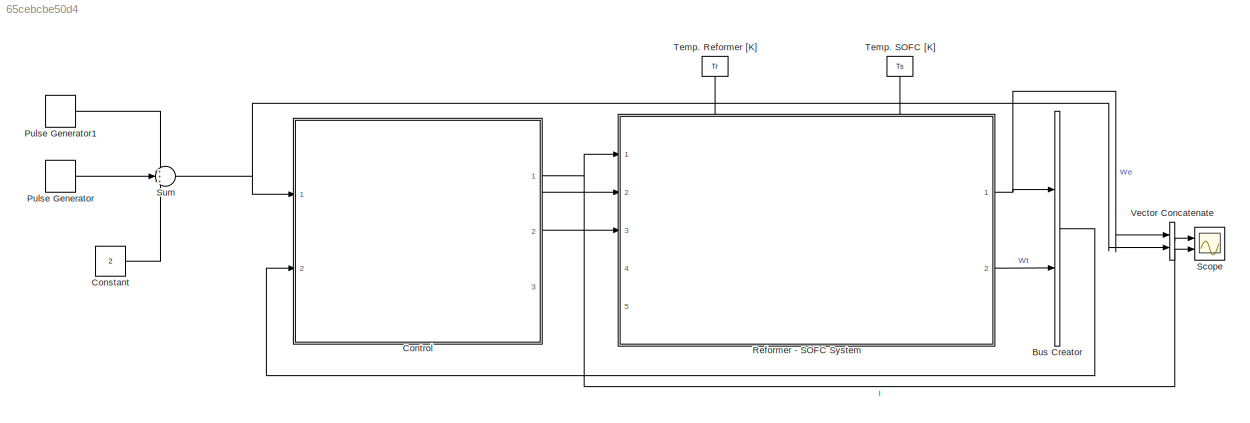
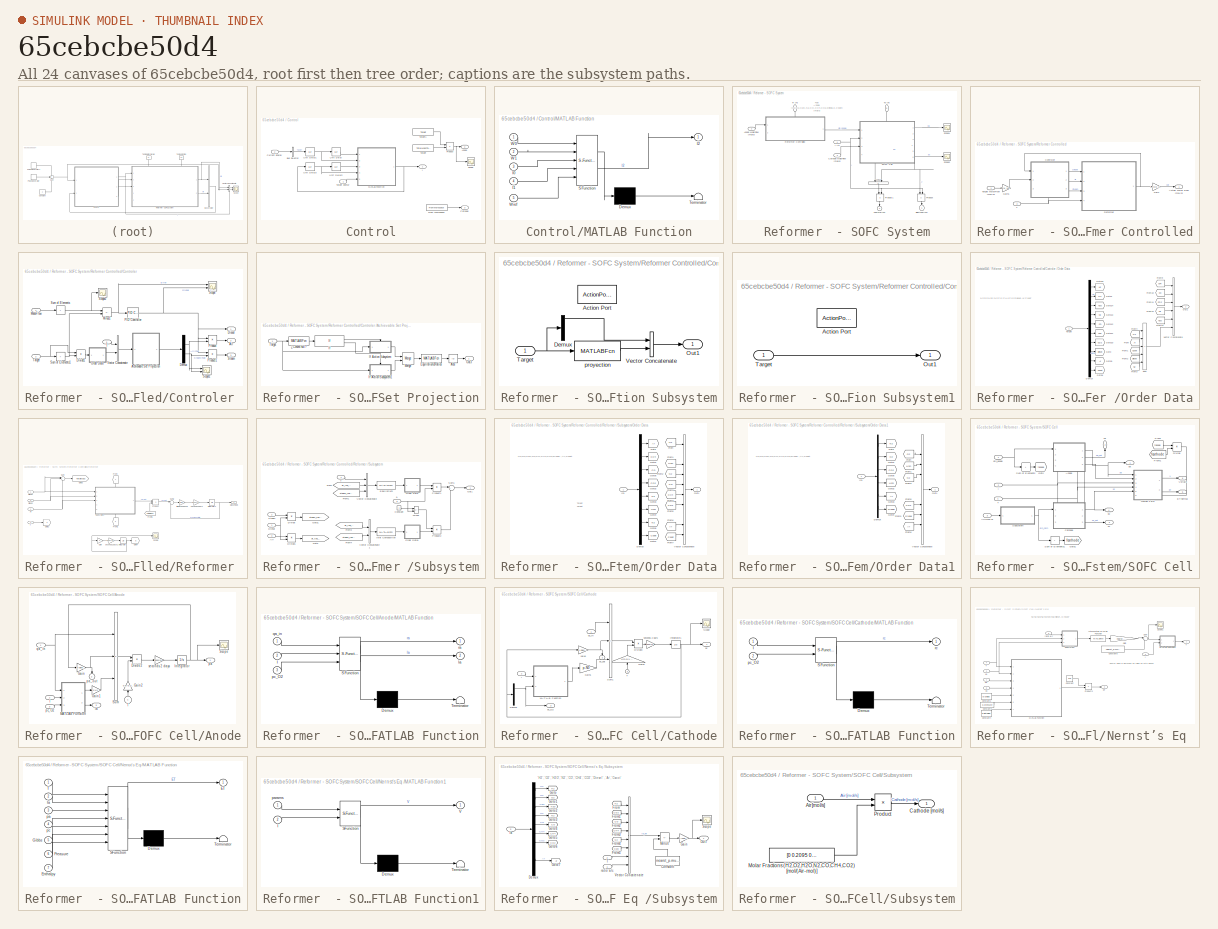
[diagram: thumbnail index - all 24 canvases of the model, root first then tree order]
MODEL slx_65cebcbe50d4
KIND model
CONFIG AbsTol = auto
CONFIG EnableMultiTasking = off
CONFIG FixedStep = auto
CONFIG MaxStep = auto
CONFIG MinStep = auto
CONFIG RelTol = 1e-3
CONFIG SampleTimeConstraint = Unconstrained
CONFIG SolverName = VariableStepAuto
CONFIG StartTime = 0.0
CONFIG StopTime = 3
BLOCK [BusCreator] Bus Creator
  DisplayOption = bar
  InheritFromInputs = on
  Inputs = 2
  Ports = [2, 1]
BLOCK [Constant] Constant
  Value = 2
BLOCK [SubSystem] Control
  Ports = [2, 3]
  RequestExecContextInheritance = off
BLOCK [Outport] Control/Anode
  Port = 2
BLOCK [BusSelector] Control/Bus Selector
  OutputSignals = We
  Ports = [1, 1]
BLOCK [Outport] Control/Cathode
  Port = 3
BLOCK [Inport] Control/Current Energy
  Port = 2
BLOCK [FromWorkspace] Control/From Workspace
  VariableName = air_mol_inlet_flow
BLOCK [Outport] Control/I
BLOCK [SubSystem] Control/MATLAB Function
  ErrorFcn = Stateflow.Translate.translate
  PermitHierarchicalResolution = ExplicitOnly
  Ports = [5, 1]
  RequestExecContextInheritance = off
  SFBlockType = MATLAB Function
  TreatAsAtomicUnit = on
BLOCK [Demux] Control/MATLAB Function/ Demux 
  Outputs = 1
  Ports = [1, 1]
BLOCK [S-Function] Control/MATLAB Function/ SFunction 
  EnableBusSupport = on
  FunctionName = sf_sfun
  PortCounts = [5 2]
  Ports = [5, 2]
  SFcnIsStateOwnerBlock = off
  SFunctionDeploymentMode = off
  Tag = Stateflow S-Function 5
BLOCK [Terminator] Control/MATLAB Function/ Terminator 
BLOCK [Inport] Control/MATLAB Function/I0
  Port = 3
BLOCK [Inport] Control/MATLAB Function/I1
  Port = 4
BLOCK [Outport] Control/MATLAB Function/I2
BLOCK [Inport] Control/MATLAB Function/W0
BLOCK [Inport] Control/MATLAB Function/W1
  Port = 2
BLOCK [Inport] Control/MATLAB Function/Wref
  Port = 5
BLOCK [Product] Control/Product
  Ports = [2, 1]
BLOCK [Scope] Control/Scope
  Floating = off
  NumInputPorts = 1
  Ports = [1]
  ScopeSpecificationString = Simulink.scopes.TimeScopeBlockCfg('CurrentConfiguration', extmgr.ConfigurationSet(extmgr.Configuration('Core','General UI',true),extmgr.Configuration('Core','Source UI',true),extmgr.Configuration('Sources','WiredSimulink',true,'DataLoggingVariableName','ScopeData2'),extmgr.Configuration('Visuals','Time Domain',true,'SerializedDisplays',{struct('MinYLimReal','-1.00000','MaxYLimReal','1.00000','YLab...<+1403ch>
BLOCK [Constant] Control/Target
  Value = TotalMassTarget
BLOCK [Inport] Control/Target Energy
BLOCK [Constant] Control/Target1
  Value = Target
BLOCK [UnitDelay] Control/Unit Delay
  HasFrameUpgradeWarning = on
  InitialCondition = 1
  SampleTime = 0.1/(3600*24)
BLOCK [UnitDelay] Control/Unit Delay1
  HasFrameUpgradeWarning = on
  InitialCondition = 1
  SampleTime = 0.1/(3600*24)
BLOCK [UnitDelay] Control/Unit Delay2
  HasFrameUpgradeWarning = on
  InitialCondition = 1
  SampleTime = 0.1/(3600*24)
BLOCK [UnitDelay] Control/Unit Delay3
  HasFrameUpgradeWarning = on
  InitialCondition = 2
  SampleTime = 0.1/(3600*24)
BLOCK [DiscretePulseGenerator] Pulse Generator
  Amplitude = 500
  Period = 2*60/(3600*24)
  Ports = [0, 1]
  PulseType = Time based
  PulseWidth = 75
BLOCK [DiscretePulseGenerator] Pulse Generator1
  Amplitude = 1000
  Period = 2*60/(3600*24)
  PhaseDelay = 60/(3600*24)
  Ports = [0, 1]
  PulseType = Time based
  PulseWidth = 25
BLOCK [SubSystem] Reformer  - SOFC System
  PortSchema = {"entries":[{"content":{"sides":[{"content":{"connectorIds":["In1","In2","In3"]},"type":"ConnectorPlacement.EquallySpacedRectSide","uuid":"200e76d3-d0bd-400d-80aa-1287817324e9"},{"content":{"connectorIds":["Out1","Out2"],"side":"RIGHT"},"type":"ConnectorPlacement.EquallySpacedRectSide","uuid":"3a1b6d1c-88bc-44b4-af37-27ac9ade1ff0"},{"content":{"connectorIds":["In4","In5"],"side":"TOP"},"type":"Con...<+414ch>
  Ports = [5, 2]
  RequestExecContextInheritance = off
BLOCK [Inport] Reformer  - SOFC System/Anode MolarFlow [mol//s]
  Port = 2
BLOCK [Inport] Reformer  - SOFC System/Cathode MolarFlow [mol//s]
  Port = 3
BLOCK [Outport] Reformer  - SOFC System/Electrical [W]
  NameLocation = left
BLOCK [Inport] Reformer  - SOFC System/I [A]
BLOCK [Sum] Reformer  - SOFC System/Minus
  IconShape = rectangular
  Inputs = +-
  NameLocation = left
  Ports = [2, 1]
BLOCK [Product] Reformer  - SOFC System/Product
  NameLocation = left
  Ports = [2, 1]
BLOCK [Product] Reformer  - SOFC System/Product1
  NameLocation = left
  Ports = [2, 1]
BLOCK [SubSystem] Reformer  - SOFC System/Reformer Controlled
  PortSchema = {"entries":[{"content":{"sides":[{"content":{"connectorIds":["In1"]},"type":"ConnectorPlacement.EquallySpacedRectSide","uuid":"29baeb98-2fcd-4e93-bac7-89db238943a7"},{"content":{"connectorIds":["Out1"],"side":"RIGHT"},"type":"ConnectorPlacement.EquallySpacedRectSide","uuid":"d0aab1a2-46f5-4965-965a-81b00350cf0c"},{"content":{"connectorIds":["In2"],"side":"TOP"},"type":"ConnectorPlacement.EquallySp...<+245ch>
  Ports = [2, 1]
  RequestExecContextInheritance = off
BLOCK [Outport] Reformer  - SOFC System/Reformer Controlled/Actual Molar Flow [mol//s]
BLOCK [SubSystem] Reformer  - SOFC System/Reformer Controlled/Controler 
  NameLocation = top
  PortSchema = {"entries":[{"content":{"sides":[{"content":{"connectorIds":["In1","In2"]},"type":"ConnectorPlacement.EquallySpacedRectSide","uuid":"d0df8d63-6ccb-4e17-b5ac-849eda0159c4"},{"content":{"connectorIds":["Out1","Out2","Out3"],"side":"RIGHT"},"type":"ConnectorPlacement.EquallySpacedRectSide","uuid":"810d19ce-f80f-4df6-8135-9424920dd639"},{"content":{"connectorIds":[],"side":"TOP"},"type":"ConnectorPlac...<+409ch>
  Ports = [3, 3]
  RequestExecContextInheritance = off
BLOCK [SubSystem] Reformer  - SOFC System/Reformer Controlled/Controler /Achievable Set Projection
  Ports = [1, 1]
  RequestExecContextInheritance = off
BLOCK [Abs] Reformer  - SOFC System/Reformer Controlled/Controler /Achievable Set Projection/Abs
  SaturateOnIntegerOverflow = off
BLOCK [MATLABFcn] Reformer  - SOFC System/Reformer Controlled/Controler /Achievable Set Projection/Equilibrium2Ratios
  MATLABFcn = backward_reformer_net
  Output1D = off
  OutputDimensions = 2
  OutputSignalType = real
  Ports = [1, 1]
BLOCK [If] Reformer  - SOFC System/Reformer Controlled/Controler /Achievable Set Projection/If
  IfExpression = u1 > 0.01
  Ports = [1, 2]
BLOCK [SubSystem] Reformer  - SOFC System/Reformer Controlled/Controler /Achievable Set Projection/If Action Subsystem
  Ports = [1, 1, 0, 0, 0, 0, 0, 1]
  RequestExecContextInheritance = off
  TreatAsAtomicUnit = on
BLOCK [ActionPort] Reformer  - SOFC System/Reformer Controlled/Controler /Achievable Set Projection/If Action Subsystem/Action Port
  ActionPortLabel = if(u1 > 0.01)
BLOCK [Demux] Reformer  - SOFC System/Reformer Controlled/Controler /Achievable Set Projection/If Action Subsystem/Demux
  Outputs = 7
  Ports = [1, 7]
BLOCK [Outport] Reformer  - SOFC System/Reformer Controlled/Controler /Achievable Set Projection/If Action Subsystem/Out1
BLOCK [Inport] Reformer  - SOFC System/Reformer Controlled/Controler /Achievable Set Projection/If Action Subsystem/Target
BLOCK [Concatenate] Reformer  - SOFC System/Reformer Controlled/Controler /Achievable Set Projection/If Action Subsystem/Vector Concatenate
  Ports = [2, 1]
BLOCK [MATLABFcn] Reformer  - SOFC System/Reformer Controlled/Controler /Achievable Set Projection/If Action Subsystem/proyection
  MATLABFcn = proyection_in_convex_hull
  Output1D = off
  OutputDimensions = 6
  OutputSignalType = real
  Ports = [1, 1]
BLOCK [SubSystem] Reformer  - SOFC System/Reformer Controlled/Controler /Achievable Set Projection/If Action Subsystem1
  Ports = [1, 1, 0, 0, 0, 0, 0, 1]
  RequestExecContextInheritance = off
  TreatAsAtomicUnit = on
BLOCK [ActionPort] Reformer  - SOFC System/Reformer Controlled/Controler /Achievable Set Projection/If Action Subsystem1/Action Port
  ActionPortLabel = else
BLOCK [Outport] Reformer  - SOFC System/Reformer Controlled/Controler /Achievable Set Projection/If Action Subsystem1/Out1
BLOCK [Inport] Reformer  - SOFC System/Reformer Controlled/Controler /Achievable Set Projection/If Action Subsystem1/Target
BLOCK [Merge] Reformer  - SOFC System/Reformer Controlled/Controler /Achievable Set Projection/Merge
  Ports = [2, 1]
BLOCK [Outport] Reformer  - SOFC System/Reformer Controlled/Controler /Achievable Set Projection/Out3
BLOCK [Inport] Reformer  - SOFC System/Reformer Controlled/Controler /Achievable Set Projection/Target
BLOCK [MATLABFcn] Reformer  - SOFC System/Reformer Controlled/Controler /Achievable Set Projection/¿Convex hull?
  MATLABFcn = check_convex_hull
  Output1D = off
  OutputDimensions = 1
  OutputSignalType = real
  Ports = [1, 1]
BLOCK [Outport] Reformer  - SOFC System/Reformer Controlled/Controler /Air
  Port = 2
BLOCK [Demux] Reformer  - SOFC System/Reformer Controlled/Controler /Demux
  Outputs = 2
  Ports = [1, 2]
BLOCK [Outport] Reformer  - SOFC System/Reformer Controlled/Controler /Diesel
BLOCK [Product] Reformer  - SOFC System/Reformer Controlled/Controler /Divide1
  Inputs = */
  Ports = [2, 1]
BLOCK [Inport] Reformer  - SOFC System/Reformer Controlled/Controler /MassFlow
BLOCK [Sum] Reformer  - SOFC System/Reformer Controlled/Controler /Minus1
  IconShape = rectangular
  Inputs = -+
  Ports = [2, 1]
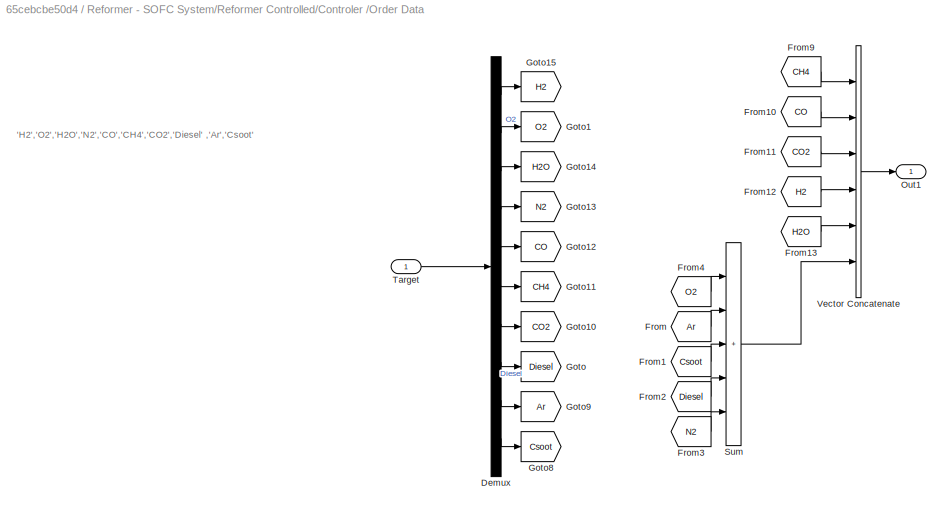
BLOCK [SubSystem] Reformer  - SOFC System/Reformer Controlled/Controler /Order Data
  Ports = [1, 1]
  RequestExecContextInheritance = off
BLOCK [Demux] Reformer  - SOFC System/Reformer Controlled/Controler /Order Data/Demux
  Outputs = 10
  Ports = [1, 10]
BLOCK [From] Reformer  - SOFC System/Reformer Controlled/Controler /Order Data/From
  GotoTag = Ar
BLOCK [From] Reformer  - SOFC System/Reformer Controlled/Controler /Order Data/From1
  GotoTag = Csoot
BLOCK [From] Reformer  - SOFC System/Reformer Controlled/Controler /Order Data/From10
  GotoTag = CO
BLOCK [From] Reformer  - SOFC System/Reformer Controlled/Controler /Order Data/From11
  GotoTag = CO2
BLOCK [From] Reformer  - SOFC System/Reformer Controlled/Controler /Order Data/From12
  GotoTag = H2
BLOCK [From] Reformer  - SOFC System/Reformer Controlled/Controler /Order Data/From13
  GotoTag = H2O
BLOCK [From] Reformer  - SOFC System/Reformer Controlled/Controler /Order Data/From2
  GotoTag = Diesel
BLOCK [From] Reformer  - SOFC System/Reformer Controlled/Controler /Order Data/From3
  GotoTag = N2
BLOCK [From] Reformer  - SOFC System/Reformer Controlled/Controler /Order Data/From4
  GotoTag = O2
BLOCK [From] Reformer  - SOFC System/Reformer Controlled/Controler /Order Data/From9
  GotoTag = CH4
BLOCK [Goto] Reformer  - SOFC System/Reformer Controlled/Controler /Order Data/Goto
  GotoTag = Diesel
BLOCK [Goto] Reformer  - SOFC System/Reformer Controlled/Controler /Order Data/Goto1
  GotoTag = O2
BLOCK [Goto] Reformer  - SOFC System/Reformer Controlled/Controler /Order Data/Goto10
  GotoTag = CO2
BLOCK [Goto] Reformer  - SOFC System/Reformer Controlled/Controler /Order Data/Goto11
  GotoTag = CH4
BLOCK [Goto] Reformer  - SOFC System/Reformer Controlled/Controler /Order Data/Goto12
  GotoTag = CO
BLOCK [Goto] Reformer  - SOFC System/Reformer Controlled/Controler /Order Data/Goto13
  GotoTag = N2
BLOCK [Goto] Reformer  - SOFC System/Reformer Controlled/Controler /Order Data/Goto14
  GotoTag = H2O
BLOCK [Goto] Reformer  - SOFC System/Reformer Controlled/Controler /Order Data/Goto15
  GotoTag = H2
BLOCK [Goto] Reformer  - SOFC System/Reformer Controlled/Controler /Order Data/Goto8
  GotoTag = Csoot
BLOCK [Goto] Reformer  - SOFC System/Reformer Controlled/Controler /Order Data/Goto9
  GotoTag = Ar
BLOCK [Outport] Reformer  - SOFC System/Reformer Controlled/Controler /Order Data/Out1
BLOCK [Sum] Reformer  - SOFC System/Reformer Controlled/Controler /Order Data/Sum
  IconShape = rectangular
  Inputs = |+++++
  Ports = [5, 1]
BLOCK [Inport] Reformer  - SOFC System/Reformer Controlled/Controler /Order Data/Target
BLOCK [Concatenate] Reformer  - SOFC System/Reformer Controlled/Controler /Order Data/Vector Concatenate
  NumInputs = 6
  Ports = [6, 1]
BLOCK [Reference] Reformer  - SOFC System/Reformer Controlled/Controler /PID Controller  REF=pid_lib/PID Controller
  Ports = [1, 1]
  SourceBlock = pid_lib/PID Controller
  SourceProductBaseCode = SL
  SourceType = PID 1dof
BLOCK [Product] Reformer  - SOFC System/Reformer Controlled/Controler /Product
  Ports = [2, 1]
BLOCK [Product] Reformer  - SOFC System/Reformer Controlled/Controler /Product1
  Ports = [2, 1]
BLOCK [Scope] Reformer  - SOFC System/Reformer Controlled/Controler /Scope
  Floating = off
  NumInputPorts = 2
  Ports = [2]
  ScopeSpecificationString = Simulink.scopes.TimeScopeBlockCfg('CurrentConfiguration', extmgr.ConfigurationSet(extmgr.Configuration('Core','General UI',true),extmgr.Configuration('Core','Source UI',true),extmgr.Configuration('Sources','WiredSimulink',true,'DataLoggingVariableName','ScopeData2'),extmgr.Configuration('Visuals','Time Domain',true,'SerializedDisplays',{struct('MinYLimReal','-0.00006','MaxYLimReal','0.00053','YLab...<+1416ch>
BLOCK [Scope] Reformer  - SOFC System/Reformer Controlled/Controler /Scope1
  Floating = off
  NumInputPorts = 2
  Ports = [2]
  ScopeSpecificationString = Simulink.scopes.TimeScopeBlockCfg('CurrentConfiguration', extmgr.ConfigurationSet(extmgr.Configuration('Core','General UI',true),extmgr.Configuration('Core','Source UI',true),extmgr.Configuration('Sources','WiredSimulink',true,'DataLoggingVariableName','ScopeData1'),extmgr.Configuration('Visuals','Time Domain',true,'SerializedDisplays',{struct('MinYLimReal','-0.00212','MaxYLimReal','1.06591','YLab...<+1378ch>
BLOCK [Scope] Reformer  - SOFC System/Reformer Controlled/Controler /Scope2
  Floating = off
  NumInputPorts = 1
  Ports = [1]
  ScopeSpecificationString = Simulink.scopes.TimeScopeBlockCfg('CurrentConfiguration', extmgr.ConfigurationSet(extmgr.Configuration('Core','General UI',true),extmgr.Configuration('Core','Source UI',true),extmgr.Configuration('Sources','WiredSimulink',true,'DataLoggingVariableName','ScopeData1'),extmgr.Configuration('Visuals','Time Domain',true,'SerializedDisplays',{struct('MinYLimReal','-0.00001','MaxYLimReal','0.0001','YLabe...<+1418ch>
BLOCK [Outport] Reformer  - SOFC System/Reformer Controlled/Controler /Steam
  Port = 3
BLOCK [Sum] Reformer  - SOFC System/Reformer Controlled/Controler /Sum of Elements
  IconShape = rectangular
  Inputs = +
  Ports = [1, 1]
BLOCK [Sum] Reformer  - SOFC System/Reformer Controlled/Controler /Sum of Elements1
  IconShape = rectangular
  Inputs = +
  Ports = [1, 1]
BLOCK [Inport] Reformer  - SOFC System/Reformer Controlled/Controler /T
  Port = 3
BLOCK [Inport] Reformer  - SOFC System/Reformer Controlled/Controler /Target
  Port = 2
BLOCK [Concatenate] Reformer  - SOFC System/Reformer Controlled/Controler /Vector Concatenate
  Ports = [2, 1]
BLOCK [Gain] Reformer  - SOFC System/Reformer Controlled/Gain
  Gain = 1./MM_vec
BLOCK [Gain] Reformer  - SOFC System/Reformer Controlled/Gain1
  Gain = MM_vec
BLOCK [SubSystem] Reformer  - SOFC System/Reformer Controlled/Reformer 
  Ports = [4, 1]
  RequestExecContextInheritance = off
BLOCK [Inport] Reformer  - SOFC System/Reformer Controlled/Reformer /Air
  Port = 2
BLOCK [Inport] Reformer  - SOFC System/Reformer Controlled/Reformer /Diesel
BLOCK [From] Reformer  - SOFC System/Reformer Controlled/Reformer /From
  GotoTag = T
  NameLocation = left
BLOCK [From] Reformer  - SOFC System/Reformer Controlled/Reformer /From1
  GotoTag = a
  NameLocation = right
BLOCK [From] Reformer  - SOFC System/Reformer Controlled/Reformer /From5
  GotoTag = TotalMass
  NameLocation = right
BLOCK [Gain] Reformer  - SOFC System/Reformer Controlled/Reformer /Gain
  Gain = -1
BLOCK [Goto] Reformer  - SOFC System/Reformer Controlled/Reformer /Goto2
  GotoTag = T
BLOCK [Goto] Reformer  - SOFC System/Reformer Controlled/Reformer /Goto3
  GotoTag = TotalMass
BLOCK [Goto] Reformer  - SOFC System/Reformer Controlled/Reformer /Goto4
  GotoTag = a
BLOCK [Integrator] Reformer  - SOFC System/Reformer Controlled/Reformer /Integrator
  InitialCondition = 1
  Ports = [1, 1]
BLOCK [Integrator] Reformer  - SOFC System/Reformer Controlled/Reformer /Integrator1
  InitialCondition = 1e-6
  Ports = [1, 1]
BLOCK [Outport] Reformer  - SOFC System/Reformer Controlled/Reformer /MassFlows
BLOCK [Product] Reformer  - SOFC System/Reformer Controlled/Reformer /Product
  Ports = [2, 1]
BLOCK [Scope] Reformer  - SOFC System/Reformer Controlled/Reformer /Scope
  Floating = off
  NumInputPorts = 1
  Ports = [1]
  ScopeSpecificationString = Simulink.scopes.TimeScopeBlockCfg('CurrentConfiguration', extmgr.ConfigurationSet(extmgr.Configuration('Core','General UI',true),extmgr.Configuration('Core','Source UI',true),extmgr.Configuration('Sources','WiredSimulink',true,'DataLoggingVariableName','ScopeData1'),extmgr.Configuration('Visuals','Time Domain',true,'SerializedDisplays',{struct('MinYLimReal','0.47943','MaxYLimReal','1.01196','YLabe...<+1386ch>
BLOCK [Inport] Reformer  - SOFC System/Reformer Controlled/Reformer /Steam
  Port = 3
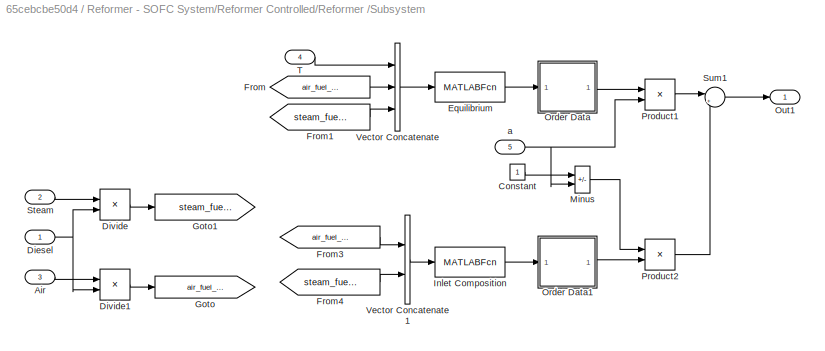
BLOCK [SubSystem] Reformer  - SOFC System/Reformer Controlled/Reformer /Subsystem
  PortSchema = {"entries":[{"content":{"sides":[{"content":{"connectorIds":["In1","In2","In3"]},"type":"ConnectorPlacement.EquallySpacedRectSide","uuid":"0dada652-6957-4c3e-8e48-73ee360a3bab"},{"content":{"connectorIds":["Out1"],"side":"RIGHT"},"type":"ConnectorPlacement.EquallySpacedRectSide","uuid":"81208621-951c-43f9-b655-3502a16ce57a"},{"content":{"connectorIds":["In4"],"side":"TOP"},"type":"ConnectorPlaceme...<+406ch>
  Ports = [5, 1]
  RequestExecContextInheritance = off
BLOCK [Inport] Reformer  - SOFC System/Reformer Controlled/Reformer /Subsystem/Air
  Port = 3
BLOCK [Constant] Reformer  - SOFC System/Reformer Controlled/Reformer /Subsystem/Constant
BLOCK [Inport] Reformer  - SOFC System/Reformer Controlled/Reformer /Subsystem/Diesel
BLOCK [Product] Reformer  - SOFC System/Reformer Controlled/Reformer /Subsystem/Divide
  Inputs = */
  Ports = [2, 1]
BLOCK [Product] Reformer  - SOFC System/Reformer Controlled/Reformer /Subsystem/Divide1
  Inputs = */
  Ports = [2, 1]
BLOCK [MATLABFcn] Reformer  - SOFC System/Reformer Controlled/Reformer /Subsystem/Equilibrium
  MATLABFcn = forward_reformer_net
  Output1D = off
  OutputDimensions = 8
  OutputSignalType = real
  Ports = [1, 1]
BLOCK [From] Reformer  - SOFC System/Reformer Controlled/Reformer /Subsystem/From
  GotoTag = air_fuel_ratio
BLOCK [From] Reformer  - SOFC System/Reformer Controlled/Reformer /Subsystem/From1
  GotoTag = steam_fuel_ratio
BLOCK [From] Reformer  - SOFC System/Reformer Controlled/Reformer /Subsystem/From3
  GotoTag = air_fuel_ratio
BLOCK [From] Reformer  - SOFC System/Reformer Controlled/Reformer /Subsystem/From4
  GotoTag = steam_fuel_ratio
BLOCK [Goto] Reformer  - SOFC System/Reformer Controlled/Reformer /Subsystem/Goto
  GotoTag = air_fuel_ratio
BLOCK [Goto] Reformer  - SOFC System/Reformer Controlled/Reformer /Subsystem/Goto1
  GotoTag = steam_fuel_ratio
BLOCK [MATLABFcn] Reformer  - SOFC System/Reformer Controlled/Reformer /Subsystem/Inlet Composition
  MATLABFcn = inlet_reformer_net
  Output1D = off
  OutputDimensions = 6
  OutputSignalType = real
  Ports = [1, 1]
BLOCK [Sum] Reformer  - SOFC System/Reformer Controlled/Reformer /Subsystem/Minus
  IconShape = rectangular
  Inputs = +-
  Ports = [2, 1]
BLOCK [SubSystem] Reformer  - SOFC System/Reformer Controlled/Reformer /Subsystem/Order Data
  Ports = [1, 1]
  RequestExecContextInheritance = off
BLOCK [Demux] Reformer  - SOFC System/Reformer Controlled/Reformer /Subsystem/Order Data/Demux
  Outputs = 8
  Ports = [1, 8]
BLOCK [From] Reformer  - SOFC System/Reformer Controlled/Reformer /Subsystem/Order Data/From
  GotoTag = H2
BLOCK [From] Reformer  - SOFC System/Reformer Controlled/Reformer /Subsystem/Order Data/From1
  GotoTag = H2O
BLOCK [From] Reformer  - SOFC System/Reformer Controlled/Reformer /Subsystem/Order Data/From2
  GotoTag = N2
BLOCK [From] Reformer  - SOFC System/Reformer Controlled/Reformer /Subsystem/Order Data/From3
  GotoTag = CO
BLOCK [From] Reformer  - SOFC System/Reformer Controlled/Reformer /Subsystem/Order Data/From4
  GotoTag = CH4
BLOCK [From] Reformer  - SOFC System/Reformer Controlled/Reformer /Subsystem/Order Data/From5
  GotoTag = CO2
BLOCK [From] Reformer  - SOFC System/Reformer Controlled/Reformer /Subsystem/Order Data/From6
  GotoTag = Ar
BLOCK [From] Reformer  - SOFC System/Reformer Controlled/Reformer /Subsystem/Order Data/From7
  GotoTag = Csoot
BLOCK [Goto] Reformer  - SOFC System/Reformer Controlled/Reformer /Subsystem/Order Data/Goto
  GotoTag = Ar
BLOCK [Goto] Reformer  - SOFC System/Reformer Controlled/Reformer /Subsystem/Order Data/Goto1
  GotoTag = CH4
BLOCK [Goto] Reformer  - SOFC System/Reformer Controlled/Reformer /Subsystem/Order Data/Goto2
  GotoTag = CO2
BLOCK [Goto] Reformer  - SOFC System/Reformer Controlled/Reformer /Subsystem/Order Data/Goto3
  GotoTag = H2
BLOCK [Goto] Reformer  - SOFC System/Reformer Controlled/Reformer /Subsystem/Order Data/Goto4
  GotoTag = H2O
BLOCK [Goto] Reformer  - SOFC System/Reformer Controlled/Reformer /Subsystem/Order Data/Goto5
  GotoTag = N2
BLOCK [Goto] Reformer  - SOFC System/Reformer Controlled/Reformer /Subsystem/Order Data/Goto6
  GotoTag = CO
BLOCK [Goto] Reformer  - SOFC System/Reformer Controlled/Reformer /Subsystem/Order Data/Goto7
  GotoTag = Csoot
BLOCK [Inport] Reformer  - SOFC System/Reformer Controlled/Reformer /Subsystem/Order Data/In1
BLOCK [Outport] Reformer  - SOFC System/Reformer Controlled/Reformer /Subsystem/Order Data/Out1
BLOCK [Concatenate] Reformer  - SOFC System/Reformer Controlled/Reformer /Subsystem/Order Data/Vector Concatenate
  NumInputs = 10
  Ports = [10, 1]
BLOCK [SubSystem] Reformer  - SOFC System/Reformer Controlled/Reformer /Subsystem/Order Data1
  Ports = [1, 1]
  RequestExecContextInheritance = off
BLOCK [Demux] Reformer  - SOFC System/Reformer Controlled/Reformer /Subsystem/Order Data1/Demux
  Outputs = 6
  Ports = [1, 6]
BLOCK [From] Reformer  - SOFC System/Reformer Controlled/Reformer /Subsystem/Order Data1/From
  GotoTag = O2
BLOCK [From] Reformer  - SOFC System/Reformer Controlled/Reformer /Subsystem/Order Data1/From1
  GotoTag = H2O
BLOCK [From] Reformer  - SOFC System/Reformer Controlled/Reformer /Subsystem/Order Data1/From2
  GotoTag = N2
BLOCK [From] Reformer  - SOFC System/Reformer Controlled/Reformer /Subsystem/Order Data1/From3
  GotoTag = Diesel
BLOCK [From] Reformer  - SOFC System/Reformer Controlled/Reformer /Subsystem/Order Data1/From5
  GotoTag = CO2
BLOCK [From] Reformer  - SOFC System/Reformer Controlled/Reformer /Subsystem/Order Data1/From6
  GotoTag = Ar
BLOCK [Goto] Reformer  - SOFC System/Reformer Controlled/Reformer /Subsystem/Order Data1/Goto
  GotoTag = N2
BLOCK [Goto] Reformer  - SOFC System/Reformer Controlled/Reformer /Subsystem/Order Data1/Goto1
  GotoTag = O2
BLOCK [Goto] Reformer  - SOFC System/Reformer Controlled/Reformer /Subsystem/Order Data1/Goto2
  GotoTag = H2O
BLOCK [Goto] Reformer  - SOFC System/Reformer Controlled/Reformer /Subsystem/Order Data1/Goto3
  GotoTag = Ar
BLOCK [Goto] Reformer  - SOFC System/Reformer Controlled/Reformer /Subsystem/Order Data1/Goto4
  GotoTag = Diesel
BLOCK [Goto] Reformer  - SOFC System/Reformer Controlled/Reformer /Subsystem/Order Data1/Goto6
  GotoTag = CO2
BLOCK [Inport] Reformer  - SOFC System/Reformer Controlled/Reformer /Subsystem/Order Data1/In1
BLOCK [Outport] Reformer  - SOFC System/Reformer Controlled/Reformer /Subsystem/Order Data1/Out1
BLOCK [Concatenate] Reformer  - SOFC System/Reformer Controlled/Reformer /Subsystem/Order Data1/Vector Concatenate
  NumInputs = 10
  Ports = [10, 1]
BLOCK [Outport] Reformer  - SOFC System/Reformer Controlled/Reformer /Subsystem/Out1
BLOCK [Product] Reformer  - SOFC System/Reformer Controlled/Reformer /Subsystem/Product1
  Ports = [2, 1]
BLOCK [Product] Reformer  - SOFC System/Reformer Controlled/Reformer /Subsystem/Product2
  Ports = [2, 1]
BLOCK [Inport] Reformer  - SOFC System/Reformer Controlled/Reformer /Subsystem/Steam
  Port = 2
BLOCK [Sum] Reformer  - SOFC System/Reformer Controlled/Reformer /Subsystem/Sum1
  Inputs = |++
  Ports = [2, 1]
BLOCK [Inport] Reformer  - SOFC System/Reformer Controlled/Reformer /Subsystem/T
  Port = 4
BLOCK [Concatenate] Reformer  - SOFC System/Reformer Controlled/Reformer /Subsystem/Vector Concatenate
  NumInputs = 3
  Ports = [3, 1]
BLOCK [Concatenate] Reformer  - SOFC System/Reformer Controlled/Reformer /Subsystem/Vector Concatenate1
  Ports = [2, 1]
BLOCK [Inport] Reformer  - SOFC System/Reformer Controlled/Reformer /Subsystem/a
  Port = 5
BLOCK [Sum] Reformer  - SOFC System/Reformer Controlled/Reformer /Sum
  Inputs = |+++
  Ports = [3, 1]
BLOCK [Sum] Reformer  - SOFC System/Reformer Controlled/Reformer /Sum2
  Inputs = |+-
  Ports = [2, 1]
BLOCK [Inport] Reformer  - SOFC System/Reformer Controlled/Reformer /T
  Port = 4
BLOCK [Gain] Reformer  - SOFC System/Reformer Controlled/Reformer /seconds 2 days
  Gain = 3600*24
BLOCK [Gain] Reformer  - SOFC System/Reformer Controlled/Reformer /seconds 2 days1
  Gain = 3600*24*0.001
BLOCK [Gain] Reformer  - SOFC System/Reformer Controlled/Reformer /time of response
  Gain = 1/(30)
BLOCK [Inport] Reformer  - SOFC System/Reformer Controlled/T
  Port = 2
BLOCK [Inport] Reformer  - SOFC System/Reformer Controlled/Target MolarFlow [mol//s]
BLOCK [SubSystem] Reformer  - SOFC System/SOFC Cell
  PortSchema = {"entries":[{"content":{"sides":[{"content":{"connectorIds":["In1","In2","In3"]},"type":"ConnectorPlacement.EquallySpacedRectSide","uuid":"6cca8e4f-6db2-48de-a60a-b6fbc16877c6"},{"content":{"connectorIds":["Out1","Out2","Out3","Out4"],"side":"RIGHT"},"type":"ConnectorPlacement.EquallySpacedRectSide","uuid":"c481f6d1-531d-4215-9ae0-5807376c0625"},{"content":{"connectorIds":["In4"],"side":"TOP"},"ty...<+435ch>
  Ports = [4, 6]
  RequestExecContextInheritance = off
BLOCK [Inport] Reformer  - SOFC System/SOFC Cell/Air[mol//s]
  Port = 3
BLOCK [SubSystem] Reformer  - SOFC System/SOFC Cell/Anode
  NameLocation = top
  PortSchema = {"entries":[{"content":{"sides":[{"content":{"connectorIds":["In1"]},"type":"ConnectorPlacement.EquallySpacedRectSide","uuid":"1d27f661-9cb9-482d-ac43-89e84d52643b"},{"content":{"connectorIds":["Out1","Out2","Out3"],"side":"RIGHT"},"type":"ConnectorPlacement.EquallySpacedRectSide","uuid":"62ac897d-5819-4e9c-a19f-e210851aefa2"},{"content":{"connectorIds":[],"side":"TOP"},"type":"ConnectorPlacement....<+415ch>
  Ports = [4, 3]
  RequestExecContextInheritance = off
BLOCK [Product] Reformer  - SOFC System/SOFC Cell/Anode/Divide2
  Inputs = **
  Ports = [2, 1]
BLOCK [Gain] Reformer  - SOFC System/SOFC Cell/Anode/Gain
  Gain = p.ValveConstants_an
BLOCK [Gain] Reformer  - SOFC System/SOFC Cell/Anode/Gain1
  Gain = p.N0
BLOCK [Gain] Reformer  - SOFC System/SOFC Cell/Anode/Gain2
  Gain = p.R/p.Vanode
  NameLocation = right
BLOCK [Inport] Reformer  - SOFC System/SOFC Cell/Anode/I
  Port = 2
BLOCK [Integrator] Reformer  - SOFC System/SOFC Cell/Anode/Integrator
  InitialCondition = x0_SOFC.pa
  Ports = [1, 1]
BLOCK [SubSystem] Reformer  - SOFC System/SOFC Cell/Anode/MATLAB Function
  ErrorFcn = Stateflow.Translate.translate
  PermitHierarchicalResolution = ExplicitOnly
  Ports = [3, 2]
  RequestExecContextInheritance = off
  SFBlockType = MATLAB Function
  TreatAsAtomicUnit = on
BLOCK [Demux] Reformer  - SOFC System/SOFC Cell/Anode/MATLAB Function/ Demux 
  Outputs = 1
  Ports = [1, 1]
BLOCK [S-Function] Reformer  - SOFC System/SOFC Cell/Anode/MATLAB Function/ SFunction 
  EnableBusSupport = on
  FunctionName = sf_sfun
  PortCounts = [3 3]
  Ports = [3, 3]
  SFcnIsStateOwnerBlock = off
  SFunctionDeploymentMode = off
  Tag = Stateflow S-Function 2
BLOCK [Terminator] Reformer  - SOFC System/SOFC Cell/Anode/MATLAB Function/ Terminator 
BLOCK [Inport] Reformer  - SOFC System/SOFC Cell/Anode/MATLAB Function/I
  Port = 2
BLOCK [Outport] Reformer  - SOFC System/SOFC Cell/Anode/MATLAB Function/la
  Port = 2
BLOCK [Inport] Reformer  - SOFC System/SOFC Cell/Anode/MATLAB Function/pc_O2
  Port = 3
BLOCK [Inport] Reformer  - SOFC System/SOFC Cell/Anode/MATLAB Function/qa_in
BLOCK [Outport] Reformer  - SOFC System/SOFC Cell/Anode/MATLAB Function/ra
BLOCK [Scope] Reformer  - SOFC System/SOFC Cell/Anode/Scope
  Floating = off
  NumInputPorts = 1
  Ports = [1]
  ScopeSpecificationString = Simulink.scopes.TimeScopeBlockCfg('CurrentConfiguration', extmgr.ConfigurationSet(extmgr.Configuration('Core','General UI',true),extmgr.Configuration('Core','Source UI',true),extmgr.Configuration('Sources','WiredSimulink',true,'DataLoggingVariableName','ScopeData4'),extmgr.Configuration('Visuals','Time Domain',true,'SerializedDisplays',{struct('MinYLimReal','-17.49933','MaxYLimReal','157.49395','Y...<+1569ch>
BLOCK [Sum] Reformer  - SOFC System/SOFC Cell/Anode/Sum
  IconShape = rectangular
  Inputs = |+-+
  Ports = [3, 1]
BLOCK [Inport] Reformer  - SOFC System/SOFC Cell/Anode/T
  NameLocation = right
  Port = 4
BLOCK [Outport] Reformer  - SOFC System/SOFC Cell/Anode/la
  Port = 3
BLOCK [Outport] Reformer  - SOFC System/SOFC Cell/Anode/pa
BLOCK [Outport] Reformer  - SOFC System/SOFC Cell/Anode/pa_out
  NameLocation = left
  Port = 2
BLOCK [Inport] Reformer  - SOFC System/SOFC Cell/Anode/pc_O2
  Port = 3
BLOCK [Inport] Reformer  - SOFC System/SOFC Cell/Anode/qa_in
BLOCK [Gain] Reformer  - SOFC System/SOFC Cell/Anode/seconds 2 days
  Gain = 3600*24
BLOCK [SubSystem] Reformer  - SOFC System/SOFC Cell/Cathode
  PortSchema = {"entries":[{"content":{"sides":[{"content":{"connectorIds":["In1"]},"type":"ConnectorPlacement.EquallySpacedRectSide","uuid":"1d27f661-9cb9-482d-ac43-89e84d52643b"},{"content":{"connectorIds":["Out1","Out2"],"side":"RIGHT"},"type":"ConnectorPlacement.EquallySpacedRectSide","uuid":"62ac897d-5819-4e9c-a19f-e210851aefa2"},{"content":{"connectorIds":["In2","Out3","In3"],"side":"TOP"},"type":"Connecto...<+265ch>
  Ports = [3, 3]
  RequestExecContextInheritance = off
BLOCK [Demux] Reformer  - SOFC System/SOFC Cell/Cathode/Demux
  Outputs = 8
  Ports = [1, 8]
BLOCK [Product] Reformer  - SOFC System/SOFC Cell/Cathode/Divide3
  Inputs = **
  Ports = [2, 1]
BLOCK [Gain] Reformer  - SOFC System/SOFC Cell/Cathode/Gain1
  Gain = p.N0
BLOCK [Gain] Reformer  - SOFC System/SOFC Cell/Cathode/Gain2
  Gain = p.R/p.Vcatho
  NameLocation = right
BLOCK [Inport] Reformer  - SOFC System/SOFC Cell/Cathode/I
  Port = 2
BLOCK [Integrator] Reformer  - SOFC System/SOFC Cell/Cathode/Integrator1
  InitialCondition = x0_SOFC.pc
  Ports = [1, 1]
BLOCK [SubSystem] Reformer  - SOFC System/SOFC Cell/Cathode/MATLAB Function
  ErrorFcn = Stateflow.Translate.translate
  PermitHierarchicalResolution = ExplicitOnly
  Ports = [2, 1]
  RequestExecContextInheritance = off
  SFBlockType = MATLAB Function
  TreatAsAtomicUnit = on
BLOCK [Demux] Reformer  - SOFC System/SOFC Cell/Cathode/MATLAB Function/ Demux 
  Outputs = 1
  Ports = [1, 1]
BLOCK [S-Function] Reformer  - SOFC System/SOFC Cell/Cathode/MATLAB Function/ SFunction 
  EnableBusSupport = on
  FunctionName = sf_sfun
  PortCounts = [2 2]
  Ports = [2, 2]
  SFcnIsStateOwnerBlock = off
  SFunctionDeploymentMode = off
  Tag = Stateflow S-Function 1
BLOCK [Terminator] Reformer  - SOFC System/SOFC Cell/Cathode/MATLAB Function/ Terminator 
BLOCK [Inport] Reformer  - SOFC System/SOFC Cell/Cathode/MATLAB Function/I
BLOCK [Inport] Reformer  - SOFC System/SOFC Cell/Cathode/MATLAB Function/pc_O2
  Port = 2
BLOCK [Outport] Reformer  - SOFC System/SOFC Cell/Cathode/MATLAB Function/rc
BLOCK [Scope] Reformer  - SOFC System/SOFC Cell/Cathode/Scope
  Floating = off
  NumInputPorts = 1
  Ports = [1]
  ScopeSpecificationString = Simulink.scopes.TimeScopeBlockCfg('CurrentConfiguration', extmgr.ConfigurationSet(extmgr.Configuration('Core','General UI',true),extmgr.Configuration('Core','Source UI',true),extmgr.Configuration('Sources','WiredSimulink',true,'DataLoggingVariableName','ScopeData3'),extmgr.Configuration('Visuals','Time Domain',true,'SerializedDisplays',{struct('MinYLimReal','-19.68772','MaxYLimReal','177.18947','Y...<+1787ch>
BLOCK [Sum] Reformer  - SOFC System/SOFC Cell/Cathode/Sum1
  IconShape = rectangular
  Inputs = |+-+
  Ports = [3, 1]
BLOCK [Inport] Reformer  - SOFC System/SOFC Cell/Cathode/T
  NameLocation = right
  Port = 3
BLOCK [Outport] Reformer  - SOFC System/SOFC Cell/Cathode/pc
BLOCK [Outport] Reformer  - SOFC System/SOFC Cell/Cathode/pc_O2
  Port = 3
BLOCK [Outport] Reformer  - SOFC System/SOFC Cell/Cathode/pc_out
  NameLocation = left
  Port = 2
BLOCK [Inport] Reformer  - SOFC System/SOFC Cell/Cathode/qc_in
BLOCK [Gain] Reformer  - SOFC System/SOFC Cell/Cathode/seconds 2 days
  Gain = 3600*24
BLOCK [Gain] Reformer  - SOFC System/SOFC Cell/Cathode/valve
  Gain = p.ValveConstants_cath
BLOCK [Product] Reformer  - SOFC System/SOFC Cell/Divide
  Inputs = /*
  Ports = [2, 1]
BLOCK [Outport] Reformer  - SOFC System/SOFC Cell/EThermal
  Port = 5
BLOCK [From] Reformer  - SOFC System/SOFC Cell/From
  GotoTag = fanode
BLOCK [From] Reformer  - SOFC System/SOFC Cell/From1
  GotoTag = fcathode
BLOCK [Goto] Reformer  - SOFC System/SOFC Cell/Goto
  GotoTag = fanode
BLOCK [Goto] Reformer  - SOFC System/SOFC Cell/Goto1
  GotoTag = fcathode
BLOCK [Inport] Reformer  - SOFC System/SOFC Cell/I
  Port = 2
BLOCK [SubSystem] Reformer  - SOFC System/SOFC Cell/Nernst’s Eq 
  PortSchema = {"entries":[{"content":{"sides":[{"content":{"connectorIds":["In1","In2","In3","In4","In5"]},"type":"ConnectorPlacement.EquallySpacedRectSide","uuid":"1b300774-e64d-4a8a-a2e9-ecdc71723fee"},{"content":{"connectorIds":["Out1","Out2"],"side":"RIGHT"},"type":"ConnectorPlacement.EquallySpacedRectSide","uuid":"354a04f1-cc66-4a63-8c50-8080316e29e9"},{"content":{"connectorIds":["In6"],"side":"TOP"},"type...<+276ch>
  Ports = [6, 2]
  RequestExecContextInheritance = off
BLOCK [Constant] Reformer  - SOFC System/SOFC Cell/Nernst’s Eq /Constant
  Value = p.N0
BLOCK [Constant] Reformer  - SOFC System/SOFC Cell/Nernst’s Eq /Constant2
  OutDataTypeStr = Bus:slBus1
  Value = p.Gibbs
BLOCK [Constant] Reformer  - SOFC System/SOFC Cell/Nernst’s Eq /Constant3
  Value = p.pressure
BLOCK [Constant] Reformer  - SOFC System/SOFC Cell/Nernst’s Eq /Constant4
  OutDataTypeStr = Bus:slBus1
  Value = p.Enthalpy
BLOCK [Constant] Reformer  - SOFC System/SOFC Cell/Nernst’s Eq /Constant5
  Value = nearst_p.mu_out
BLOCK [Outport] Reformer  - SOFC System/SOFC Cell/Nernst’s Eq /ET
  Port = 2
  PortDimensions = 1
BLOCK [Gain] Reformer  - SOFC System/SOFC Cell/Nernst’s Eq /Gain
  Gain = nearst_p.std_out
BLOCK [Inport] Reformer  - SOFC System/SOFC Cell/Nernst’s Eq /I
  Port = 3
BLOCK [MATLABFcn] Reformer  - SOFC System/SOFC Cell/Nernst’s Eq /Interpreted MATLAB Function
  MATLABFcn = nearst_nn
  Ports = [1, 1]
BLOCK [SubSystem] Reformer  - SOFC System/SOFC Cell/Nernst’s Eq /MATLAB Function
  ErrorFcn = Stateflow.Translate.translate
  PermitHierarchicalResolution = ExplicitOnly
  Ports = [7, 1]
  RequestExecContextInheritance = off
  SFBlockType = MATLAB Function
  TreatAsAtomicUnit = on
BLOCK [Demux] Reformer  - SOFC System/SOFC Cell/Nernst’s Eq /MATLAB Function/ Demux 
  Outputs = 1
  Ports = [1, 1]
BLOCK [S-Function] Reformer  - SOFC System/SOFC Cell/Nernst’s Eq /MATLAB Function/ SFunction 
  EnableBusSupport = on
  FunctionName = sf_sfun
  PortCounts = [7 2]
  Ports = [7, 2]
  SFcnIsStateOwnerBlock = off
  SFunctionDeploymentMode = off
  Tag = Stateflow S-Function 3
BLOCK [Terminator] Reformer  - SOFC System/SOFC Cell/Nernst’s Eq /MATLAB Function/ Terminator 
BLOCK [Outport] Reformer  - SOFC System/SOFC Cell/Nernst’s Eq /MATLAB Function/ET
BLOCK [Inport] Reformer  - SOFC System/SOFC Cell/Nernst’s Eq /MATLAB Function/Enthalpy
  Port = 7
BLOCK [Inport] Reformer  - SOFC System/SOFC Cell/Nernst’s Eq /MATLAB Function/Gibbs
  Port = 5
BLOCK [Inport] Reformer  - SOFC System/SOFC Cell/Nernst’s Eq /MATLAB Function/Preasure
  Port = 6
BLOCK [Inport] Reformer  - SOFC System/SOFC Cell/Nernst’s Eq /MATLAB Function/T
BLOCK [Inport] Reformer  - SOFC System/SOFC Cell/Nernst’s Eq /MATLAB Function/la
  Port = 2
BLOCK [Inport] Reformer  - SOFC System/SOFC Cell/Nernst’s Eq /MATLAB Function/pa
  Port = 3
BLOCK [Inport] Reformer  - SOFC System/SOFC Cell/Nernst’s Eq /MATLAB Function/pc
  Port = 4
BLOCK [SubSystem] Reformer  - SOFC System/SOFC Cell/Nernst’s Eq /MATLAB Function1
  ErrorFcn = Stateflow.Translate.translate
  PermitHierarchicalResolution = ExplicitOnly
  Ports = [2, 1]
  RequestExecContextInheritance = off
  SFBlockType = MATLAB Function
  TreatAsAtomicUnit = on
BLOCK [Demux] Reformer  - SOFC System/SOFC Cell/Nernst’s Eq /MATLAB Function1/ Demux 
  Outputs = 1
  Ports = [1, 1]
BLOCK [S-Function] Reformer  - SOFC System/SOFC Cell/Nernst’s Eq /MATLAB Function1/ SFunction 
  EnableBusSupport = on
  FunctionName = sf_sfun
  PortCounts = [2 2]
  Ports = [2, 2]
  SFcnIsStateOwnerBlock = off
  SFunctionDeploymentMode = off
  Tag = Stateflow S-Function 4
BLOCK [Terminator] Reformer  - SOFC System/SOFC Cell/Nernst’s Eq /MATLAB Function1/ Terminator 
BLOCK [Inport] Reformer  - SOFC System/SOFC Cell/Nernst’s Eq /MATLAB Function1/I
  Port = 2
BLOCK [Outport] Reformer  - SOFC System/SOFC Cell/Nernst’s Eq /MATLAB Function1/V
BLOCK [Inport] Reformer  - SOFC System/SOFC Cell/Nernst’s Eq /MATLAB Function1/params
BLOCK [Product] Reformer  - SOFC System/SOFC Cell/Nernst’s Eq /Product2
  Ports = [2, 1]
BLOCK [Scope] Reformer  - SOFC System/SOFC Cell/Nernst’s Eq /Scope1
  Floating = off
  NumInputPorts = 1
  Ports = [1]
  ScopeSpecificationString = Simulink.scopes.TimeScopeBlockCfg('CurrentConfiguration', extmgr.ConfigurationSet(extmgr.Configuration('Core','General UI',true),extmgr.Configuration('Core','Source UI',true),extmgr.Configuration('Sources','WiredSimulink',true,'DataLoggingVariableName','ScopeData3'),extmgr.Configuration('Visuals','Time Domain',true,'SerializedDisplays',{struct('MinYLimReal','-4.0972','MaxYLimReal','33.4505','YLabe...<+1424ch>
BLOCK [SubSystem] Reformer  - SOFC System/SOFC Cell/Nernst’s Eq /Subsystem
  Ports = [3, 1]
  RequestExecContextInheritance = off
BLOCK [Constant] Reformer  - SOFC System/SOFC Cell/Nernst’s Eq /Subsystem/Constant
  NameLocation = right
  Value = nearst_p.mu_in
BLOCK [Demux] Reformer  - SOFC System/SOFC Cell/Nernst’s Eq /Subsystem/Demux
  Outputs = 10
  Ports = [1, 10]
BLOCK [From] Reformer  - SOFC System/SOFC Cell/Nernst’s Eq /Subsystem/From
  GotoTag = H2
BLOCK [From] Reformer  - SOFC System/SOFC Cell/Nernst’s Eq /Subsystem/From1
  GotoTag = CO2
BLOCK [From] Reformer  - SOFC System/SOFC Cell/Nernst’s Eq /Subsystem/From2
  GotoTag = CO
BLOCK [From] Reformer  - SOFC System/SOFC Cell/Nernst’s Eq /Subsystem/From3
  GotoTag = CH4
BLOCK [From] Reformer  - SOFC System/SOFC Cell/Nernst’s Eq /Subsystem/From4
  GotoTag = N2
BLOCK [From] Reformer  - SOFC System/SOFC Cell/Nernst’s Eq /Subsystem/From5
  GotoTag = H2O
BLOCK [Gain] Reformer  - SOFC System/SOFC Cell/Nernst’s Eq /Subsystem/Gain
  Gain = 1./nearst_p.std_in
BLOCK [Goto] Reformer  - SOFC System/SOFC Cell/Nernst’s Eq /Subsystem/Goto
  GotoTag = H2
BLOCK [Goto] Reformer  - SOFC System/SOFC Cell/Nernst’s Eq /Subsystem/Goto1
  GotoTag = O2
BLOCK [Goto] Reformer  - SOFC System/SOFC Cell/Nernst’s Eq /Subsystem/Goto2
  GotoTag = H2O
BLOCK [Goto] Reformer  - SOFC System/SOFC Cell/Nernst’s Eq /Subsystem/Goto3
  GotoTag = N2
BLOCK [Goto] Reformer  - SOFC System/SOFC Cell/Nernst’s Eq /Subsystem/Goto4
  GotoTag = CO
BLOCK [Goto] Reformer  - SOFC System/SOFC Cell/Nernst’s Eq /Subsystem/Goto5
  GotoTag = CH4
BLOCK [Goto] Reformer  - SOFC System/SOFC Cell/Nernst’s Eq /Subsystem/Goto6
  GotoTag = CO2
BLOCK [Goto] Reformer  - SOFC System/SOFC Cell/Nernst’s Eq /Subsystem/Goto7
  GotoTag = Ar
BLOCK [Sum] Reformer  - SOFC System/SOFC Cell/Nernst’s Eq /Subsystem/Minus
  IconShape = rectangular
  Inputs = +-
  Ports = [2, 1]
BLOCK [Outport] Reformer  - SOFC System/SOFC Cell/Nernst’s Eq /Subsystem/Out7
BLOCK [Scope] Reformer  - SOFC System/SOFC Cell/Nernst’s Eq /Subsystem/Scope
  Floating = off
  NumInputPorts = 1
  Ports = [1]
  ScopeSpecificationString = Simulink.scopes.TimeScopeBlockCfg('CurrentConfiguration', extmgr.ConfigurationSet(extmgr.Configuration('Core','General UI',true),extmgr.Configuration('Core','Source UI',true),extmgr.Configuration('Sources','WiredSimulink',true,'DataLoggingVariableName','ScopeData1'),extmgr.Configuration('Visuals','Time Domain',true,'SerializedDisplays',{struct('MinYLimReal','-18.8494','MaxYLimReal','158.60341','YL...<+1465ch>
BLOCK [Inport] Reformer  - SOFC System/SOFC Cell/Nernst’s Eq /Subsystem/T
  Port = 2
BLOCK [Concatenate] Reformer  - SOFC System/SOFC Cell/Nernst’s Eq /Subsystem/Vector Concatenate
  NumInputs = 8
  Ports = [8, 1]
BLOCK [Inport] Reformer  - SOFC System/SOFC Cell/Nernst’s Eq /Subsystem/la
  Port = 3
BLOCK [Inport] Reformer  - SOFC System/SOFC Cell/Nernst’s Eq /Subsystem/ratio a//c
BLOCK [Sum] Reformer  - SOFC System/SOFC Cell/Nernst’s Eq /Sum
  Inputs = |++
  Ports = [2, 1]
BLOCK [Inport] Reformer  - SOFC System/SOFC Cell/Nernst’s Eq /T
  Port = 4
BLOCK [Outport] Reformer  - SOFC System/SOFC Cell/Nernst’s Eq /V
  PortDimensions = 1
BLOCK [Inport] Reformer  - SOFC System/SOFC Cell/Nernst’s Eq /Xa
  Port = 2
BLOCK [Inport] Reformer  - SOFC System/SOFC Cell/Nernst’s Eq /pa
BLOCK [Inport] Reformer  - SOFC System/SOFC Cell/Nernst’s Eq /pc
  Port = 5
BLOCK [Inport] Reformer  - SOFC System/SOFC Cell/Nernst’s Eq /ratio a//c
  Port = 6
BLOCK [SubSystem] Reformer  - SOFC System/SOFC Cell/Subsystem
  Ports = [1, 1]
  RequestExecContextInheritance = off
BLOCK [Inport] Reformer  - SOFC System/SOFC Cell/Subsystem/Air[mol//s]
BLOCK [Outport] Reformer  - SOFC System/SOFC Cell/Subsystem/Cathode [mol//s]
BLOCK [Constant] Reformer  - SOFC System/SOFC Cell/Subsystem/Molar Fractions (H2,O2,H2O,N2,CO,CH4,CO2) [mol//(Air-mol)]
  Value = [0 0.2095 0 0.7808 0 0 0 0 0 0]
BLOCK [Product] Reformer  - SOFC System/SOFC Cell/Subsystem/Product
  Ports = [2, 1]
BLOCK [Sum] Reformer  - SOFC System/SOFC Cell/Sum of Elements
  IconShape = rectangular
  Inputs = +
  Ports = [1, 1]
BLOCK [Sum] Reformer  - SOFC System/SOFC Cell/Sum of Elements1
  IconShape = rectangular
  Inputs = +
  Ports = [1, 1]
BLOCK [Inport] Reformer  - SOFC System/SOFC Cell/T
  Port = 4
BLOCK [Outport] Reformer  - SOFC System/SOFC Cell/Voltaje
  Port = 6
BLOCK [Outport] Reformer  - SOFC System/SOFC Cell/pa
BLOCK [Outport] Reformer  - SOFC System/SOFC Cell/pc
  Port = 4
BLOCK [Inport] Reformer  - SOFC System/SOFC Cell/qin_anode
BLOCK [Outport] Reformer  - SOFC System/SOFC Cell/va
  NameLocation = right
  Port = 2
BLOCK [Outport] Reformer  - SOFC System/SOFC Cell/vc
  Port = 3
BLOCK [Scope] Reformer  - SOFC System/Scope1
  Floating = off
  NumInputPorts = 1
  Ports = [1]
  ScopeSpecificationString = Simulink.scopes.TimeScopeBlockCfg('CurrentConfiguration', extmgr.ConfigurationSet(extmgr.Configuration('Core','General UI',true),extmgr.Configuration('Core','Source UI',true),extmgr.Configuration('Sources','WiredSimulink',true,'DataLoggingVariableName','ScopeData1'),extmgr.Configuration('Visuals','Time Domain',true,'SerializedDisplays',{struct('MinYLimReal','-8.19115','MaxYLimReal','73.72021','YLa...<+1458ch>
BLOCK [Scope] Reformer  - SOFC System/Scope2
  Floating = off
  NumInputPorts = 1
  Ports = [1]
  ScopeSpecificationString = Simulink.scopes.TimeScopeBlockCfg('CurrentConfiguration', extmgr.ConfigurationSet(extmgr.Configuration('Core','General UI',true),extmgr.Configuration('Core','Source UI',true),extmgr.Configuration('Sources','WiredSimulink',true,'DataLoggingVariableName','ScopeData2'),extmgr.Configuration('Visuals','Time Domain',true,'SerializedDisplays',{struct('MinYLimReal','-19.68939','MaxYLimReal','177.20452','Y...<+1509ch>
BLOCK [Outport] Reformer  - SOFC System/Thermal [W]
  NameLocation = left
  Port = 2
BLOCK [Inport] Reformer  - SOFC System/Tr [K]
  NameLocation = left
  Port = 4
BLOCK [Inport] Reformer  - SOFC System/Ts [K]
  NameLocation = left
  Port = 5
BLOCK [Scope] Scope
  Floating = off
  NumInputPorts = 2
  Ports = [2]
  ScopeSpecificationString = Simulink.scopes.TimeScopeBlockCfg('CurrentConfiguration', extmgr.ConfigurationSet(extmgr.Configuration('Core','General UI',true),extmgr.Configuration('Core','Source UI',true),extmgr.Configuration('Sources','WiredSimulink',true,'DataLoggingVariableName','ScopeData1'),extmgr.Configuration('Visuals','Time Domain',true,'SerializedDisplays',{struct('MinYLimReal','-333.45819','MaxYLimReal','1705.9398','...<+2088ch>
BLOCK [Sum] Sum
  Inputs = +++
  Ports = [3, 1]
BLOCK [Constant] Temp. Reformer [K]
  NameLocation = top
  Value = Tr
BLOCK [Constant] Temp. SOFC [K]
  NameLocation = top
  Value = Ts
BLOCK [Concatenate] Vector Concatenate
  Ports = [2, 1]
ANNOTATION Reformer  - SOFC System: Fuel A node (H2,O2,H2O,N2,CO,CH4,CO2,Diesel,Ar,Csoot) [mol/s]
ANNOTATION Reformer  - SOFC System/Reformer Controlled/Controler /Order Data: 'H2' , 'O2' , 'H2O' , 'N2' , 'CO' , 'CH4' , 'CO2' , 'Diesel' ,'Ar','Csoot'
ANNOTATION Reformer  - SOFC System/Reformer Controlled/Reformer /Subsystem/Order Data: Target
ANNOTATION Reformer  - SOFC System/Reformer Controlled/Reformer /Subsystem/Order Data: 'H2' , 'O2' , 'H2O' , 'N2' , 'CO' , 'CH4' , 'CO2' , 'Diesel' ,'Ar','Csoot'
ANNOTATION Reformer  - SOFC System/Reformer Controlled/Reformer /Subsystem/Order Data1: 'H2' , 'O2' , 'H2O' , 'N2' , 'CO' , 'CH4' , 'CO2' , 'Diesel' ,'Ar','Csoot'
ANNOTATION Reformer  - SOFC System/SOFC Cell/Nernst’s Eq : 'H2' , 'O2' , 'H2O' , 'N2' , 'CO' , 'CH4' , 'CO2' , 'Diesel' ,'Ar','Csoot'
ANNOTATION Reformer  - SOFC System/SOFC Cell/Nernst’s Eq : Hemos fijado la dimension de salida de este bloque
ANNOTATION Reformer  - SOFC System/SOFC Cell/Nernst’s Eq /Subsystem: 'H2' , 'O2' , 'H2O' , 'N2' , 'CO' , 'CH4' , 'CO2' , 'Diesel' ,'Ar','Csoot'
LINE Bus Creator:1 -> Control:2
LINE Constant:1 -> Sum:3
LINE Control/Bus Selector:1 -> Control/Unit Delay1:1
LINE Control/Current Energy:1 -> Control/Bus Selector:1
LINE Control/From Workspace:1 -> Control/Cathode:1
NET Control/MATLAB Function:1 -> Control/I:1, Control/Unit Delay3:1
NET Control/Product:1 -> Control/Anode:1, Control/Scope:1
LINE Control/Target Energy:1 -> Control/MATLAB Function:5
LINE Control/Target1:1 -> Control/Product:1
LINE Control/Target:1 -> Control/Product:2
NET Control/Unit Delay1:1 -> Control/MATLAB Function:2, Control/Unit Delay:1
LINE Control/Unit Delay2:1 -> Control/MATLAB Function:3
NET Control/Unit Delay3:1 -> Control/MATLAB Function:4, Control/Unit Delay2:1
LINE Control/Unit Delay:1 -> Control/MATLAB Function:1
NET Control:1 -> Reformer  - SOFC System:1, Scope:2
LINE Control:2 -> Reformer  - SOFC System:2
LINE Control:3 -> Reformer  - SOFC System:3
LINE Pulse Generator1:1 -> Sum:1
LINE Pulse Generator:1 -> Sum:2
LINE Reformer  - SOFC System/Anode MolarFlow [mol//s]:1 -> Reformer  - SOFC System/Reformer Controlled:1
LINE Reformer  - SOFC System/Cathode MolarFlow [mol//s]:1 -> Reformer  - SOFC System/SOFC Cell:3
NET Reformer  - SOFC System/I [A]:1 -> Reformer  - SOFC System/Product1:2, Reformer  - SOFC System/Product:2, Reformer  - SOFC System/SOFC Cell:2
LINE Reformer  - SOFC System/Minus:1 -> Reformer  - SOFC System/Product1:1
LINE Reformer  - SOFC System/Product1:1 -> Reformer  - SOFC System/Thermal [W]:1
LINE Reformer  - SOFC System/Product:1 -> Reformer  - SOFC System/Electrical [W]:1
LINE Reformer  - SOFC System/Reformer Controlled/Controler /Achievable Set Projection/Abs:1 -> Reformer  - SOFC System/Reformer Controlled/Controler /Achievable Set Projection/Out3:1
LINE Reformer  - SOFC System/Reformer Controlled/Controler /Achievable Set Projection/Equilibrium2Ratios:1 -> Reformer  - SOFC System/Reformer Controlled/Controler /Achievable Set Projection/Abs:1
LINE Reformer  - SOFC System/Reformer Controlled/Controler /Achievable Set Projection/If Action Subsystem/Demux:1 -> Reformer  - SOFC System/Reformer Controlled/Controler /Achievable Set Projection/If Action Subsystem/Vector Concatenate:1
NET Reformer  - SOFC System/Reformer Controlled/Controler /Achievable Set Projection/If Action Subsystem/Target:1 -> Reformer  - SOFC System/Reformer Controlled/Controler /Achievable Set Projection/If Action Subsystem/Demux:1, Reformer  - SOFC System/Reformer Controlled/Controler /Achievable Set Projection/If Action Subsystem/proyection:1
LINE Reformer  - SOFC System/Reformer Controlled/Controler /Achievable Set Projection/If Action Subsystem/Vector Concatenate:1 -> Reformer  - SOFC System/Reformer Controlled/Controler /Achievable Set Projection/If Action Subsystem/Out1:1
LINE Reformer  - SOFC System/Reformer Controlled/Controler /Achievable Set Projection/If Action Subsystem/proyection:1 -> Reformer  - SOFC System/Reformer Controlled/Controler /Achievable Set Projection/If Action Subsystem/Vector Concatenate:2
LINE Reformer  - SOFC System/Reformer Controlled/Controler /Achievable Set Projection/If Action Subsystem1/Target:1 -> Reformer  - SOFC System/Reformer Controlled/Controler /Achievable Set Projection/If Action Subsystem1/Out1:1
LINE Reformer  - SOFC System/Reformer Controlled/Controler /Achievable Set Projection/If Action Subsystem1:1 -> Reformer  - SOFC System/Reformer Controlled/Controler /Achievable Set Projection/Merge:2
LINE Reformer  - SOFC System/Reformer Controlled/Controler /Achievable Set Projection/If Action Subsystem:1 -> Reformer  - SOFC System/Reformer Controlled/Controler /Achievable Set Projection/Merge:1
LINE Reformer  - SOFC System/Reformer Controlled/Controler /Achievable Set Projection/If:1 -> Reformer  - SOFC System/Reformer Controlled/Controler /Achievable Set Projection/If Action Subsystem:ifaction
LINE Reformer  - SOFC System/Reformer Controlled/Controler /Achievable Set Projection/If:2 -> Reformer  - SOFC System/Reformer Controlled/Controler /Achievable Set Projection/If Action Subsystem1:ifaction
LINE Reformer  - SOFC System/Reformer Controlled/Controler /Achievable Set Projection/Merge:1 -> Reformer  - SOFC System/Reformer Controlled/Controler /Achievable Set Projection/Equilibrium2Ratios:1
NET Reformer  - SOFC System/Reformer Controlled/Controler /Achievable Set Projection/Target:1 -> Reformer  - SOFC System/Reformer Controlled/Controler /Achievable Set Projection/If Action Subsystem1:1, Reformer  - SOFC System/Reformer Controlled/Controler /Achievable Set Projection/If Action Subsystem:1, Reformer  - SOFC System/Reformer Controlled/Controler /Achievable Set Projection/¿Convex hull?:1
LINE Reformer  - SOFC System/Reformer Controlled/Controler /Achievable Set Projection/¿Convex hull?:1 -> Reformer  - SOFC System/Reformer Controlled/Controler /Achievable Set Projection/If:1
LINE Reformer  - SOFC System/Reformer Controlled/Controler /Achievable Set Projection:1 -> Reformer  - SOFC System/Reformer Controlled/Controler /Demux:1
NET Reformer  - SOFC System/Reformer Controlled/Controler /Demux:1 -> Reformer  - SOFC System/Reformer Controlled/Controler /Product:2, Reformer  - SOFC System/Reformer Controlled/Controler /Scope1:1
NET Reformer  - SOFC System/Reformer Controlled/Controler /Demux:2 -> Reformer  - SOFC System/Reformer Controlled/Controler /Product1:2, Reformer  - SOFC System/Reformer Controlled/Controler /Scope1:2
LINE Reformer  - SOFC System/Reformer Controlled/Controler /Divide1:1 -> Reformer  - SOFC System/Reformer Controlled/Controler /Order Data:1
LINE Reformer  - SOFC System/Reformer Controlled/Controler /MassFlow:1 -> Reformer  - SOFC System/Reformer Controlled/Controler /Sum of Elements:1
NET Reformer  - SOFC System/Reformer Controlled/Controler /Minus1:1 -> Reformer  - SOFC System/Reformer Controlled/Controler /PID Controller:1, Reformer  - SOFC System/Reformer Controlled/Controler /Scope:1
LINE Reformer  - SOFC System/Reformer Controlled/Controler /Order Data/Demux:1 -> Reformer  - SOFC System/Reformer Controlled/Controler /Order Data/Goto15:1
LINE Reformer  - SOFC System/Reformer Controlled/Controler /Order Data/Demux:10 -> Reformer  - SOFC System/Reformer Controlled/Controler /Order Data/Goto8:1
LINE Reformer  - SOFC System/Reformer Controlled/Controler /Order Data/Demux:2 -> Reformer  - SOFC System/Reformer Controlled/Controler /Order Data/Goto1:1
LINE Reformer  - SOFC System/Reformer Controlled/Controler /Order Data/Demux:3 -> Reformer  - SOFC System/Reformer Controlled/Controler /Order Data/Goto14:1
LINE Reformer  - SOFC System/Reformer Controlled/Controler /Order Data/Demux:4 -> Reformer  - SOFC System/Reformer Controlled/Controler /Order Data/Goto13:1
LINE Reformer  - SOFC System/Reformer Controlled/Controler /Order Data/Demux:5 -> Reformer  - SOFC System/Reformer Controlled/Controler /Order Data/Goto12:1
LINE Reformer  - SOFC System/Reformer Controlled/Controler /Order Data/Demux:6 -> Reformer  - SOFC System/Reformer Controlled/Controler /Order Data/Goto11:1
LINE Reformer  - SOFC System/Reformer Controlled/Controler /Order Data/Demux:7 -> Reformer  - SOFC System/Reformer Controlled/Controler /Order Data/Goto10:1
LINE Reformer  - SOFC System/Reformer Controlled/Controler /Order Data/Demux:8 -> Reformer  - SOFC System/Reformer Controlled/Controler /Order Data/Goto:1
LINE Reformer  - SOFC System/Reformer Controlled/Controler /Order Data/Demux:9 -> Reformer  - SOFC System/Reformer Controlled/Controler /Order Data/Goto9:1
LINE Reformer  - SOFC System/Reformer Controlled/Controler /Order Data/From10:1 -> Reformer  - SOFC System/Reformer Controlled/Controler /Order Data/Vector Concatenate:2
LINE Reformer  - SOFC System/Reformer Controlled/Controler /Order Data/From11:1 -> Reformer  - SOFC System/Reformer Controlled/Controler /Order Data/Vector Concatenate:3
LINE Reformer  - SOFC System/Reformer Controlled/Controler /Order Data/From12:1 -> Reformer  - SOFC System/Reformer Controlled/Controler /Order Data/Vector Concatenate:4
LINE Reformer  - SOFC System/Reformer Controlled/Controler /Order Data/From13:1 -> Reformer  - SOFC System/Reformer Controlled/Controler /Order Data/Vector Concatenate:5
LINE Reformer  - SOFC System/Reformer Controlled/Controler /Order Data/From1:1 -> Reformer  - SOFC System/Reformer Controlled/Controler /Order Data/Sum:3
LINE Reformer  - SOFC System/Reformer Controlled/Controler /Order Data/From2:1 -> Reformer  - SOFC System/Reformer Controlled/Controler /Order Data/Sum:4
LINE Reformer  - SOFC System/Reformer Controlled/Controler /Order Data/From3:1 -> Reformer  - SOFC System/Reformer Controlled/Controler /Order Data/Sum:5
LINE Reformer  - SOFC System/Reformer Controlled/Controler /Order Data/From4:1 -> Reformer  - SOFC System/Reformer Controlled/Controler /Order Data/Sum:1
LINE Reformer  - SOFC System/Reformer Controlled/Controler /Order Data/From9:1 -> Reformer  - SOFC System/Reformer Controlled/Controler /Order Data/Vector Concatenate:1
LINE Reformer  - SOFC System/Reformer Controlled/Controler /Order Data/From:1 -> Reformer  - SOFC System/Reformer Controlled/Controler /Order Data/Sum:2
LINE Reformer  - SOFC System/Reformer Controlled/Controler /Order Data/Sum:1 -> Reformer  - SOFC System/Reformer Controlled/Controler /Order Data/Vector Concatenate:6
LINE Reformer  - SOFC System/Reformer Controlled/Controler /Order Data/Target:1 -> Reformer  - SOFC System/Reformer Controlled/Controler /Order Data/Demux:1
LINE Reformer  - SOFC System/Reformer Controlled/Controler /Order Data/Vector Concatenate:1 -> Reformer  - SOFC System/Reformer Controlled/Controler /Order Data/Out1:1
LINE Reformer  - SOFC System/Reformer Controlled/Controler /Order Data:1 -> Reformer  - SOFC System/Reformer Controlled/Controler /Vector Concatenate:2
NET Reformer  - SOFC System/Reformer Controlled/Controler /PID Controller:1 -> Reformer  - SOFC System/Reformer Controlled/Controler /Diesel:1, Reformer  - SOFC System/Reformer Controlled/Controler /Product1:1, Reformer  - SOFC System/Reformer Controlled/Controler /Product:1, Reformer  - SOFC System/Reformer Controlled/Controler /Scope:2
LINE Reformer  - SOFC System/Reformer Controlled/Controler /Product1:1 -> Reformer  - SOFC System/Reformer Controlled/Controler /Steam:1
LINE Reformer  - SOFC System/Reformer Controlled/Controler /Product:1 -> Reformer  - SOFC System/Reformer Controlled/Controler /Air:1
NET Reformer  - SOFC System/Reformer Controlled/Controler /Sum of Elements1:1 -> Reformer  - SOFC System/Reformer Controlled/Controler /Divide1:2, Reformer  - SOFC System/Reformer Controlled/Controler /Minus1:2
NET Reformer  - SOFC System/Reformer Controlled/Controler /Sum of Elements:1 -> Reformer  - SOFC System/Reformer Controlled/Controler /Minus1:1, Reformer  - SOFC System/Reformer Controlled/Controler /Scope2:1
LINE Reformer  - SOFC System/Reformer Controlled/Controler /T:1 -> Reformer  - SOFC System/Reformer Controlled/Controler /Vector Concatenate:1
NET Reformer  - SOFC System/Reformer Controlled/Controler /Target:1 -> Reformer  - SOFC System/Reformer Controlled/Controler /Divide1:1, Reformer  - SOFC System/Reformer Controlled/Controler /Sum of Elements1:1
LINE Reformer  - SOFC System/Reformer Controlled/Controler /Vector Concatenate:1 -> Reformer  - SOFC System/Reformer Controlled/Controler /Achievable Set Projection:1
LINE Reformer  - SOFC System/Reformer Controlled/Controler :1 -> Reformer  - SOFC System/Reformer Controlled/Reformer :1
LINE Reformer  - SOFC System/Reformer Controlled/Controler :2 -> Reformer  - SOFC System/Reformer Controlled/Reformer :2
LINE Reformer  - SOFC System/Reformer Controlled/Controler :3 -> Reformer  - SOFC System/Reformer Controlled/Reformer :3
LINE Reformer  - SOFC System/Reformer Controlled/Gain1:1 -> Reformer  - SOFC System/Reformer Controlled/Controler :2
LINE Reformer  - SOFC System/Reformer Controlled/Gain:1 -> Reformer  - SOFC System/Reformer Controlled/Actual Molar Flow [mol//s]:1
NET Reformer  - SOFC System/Reformer Controlled/Reformer /Air:1 -> Reformer  - SOFC System/Reformer Controlled/Reformer /Subsystem:3, Reformer  - SOFC System/Reformer Controlled/Reformer /Sum:3
NET Reformer  - SOFC System/Reformer Controlled/Reformer /Diesel:1 -> Reformer  - SOFC System/Reformer Controlled/Reformer /Subsystem:1, Reformer  - SOFC System/Reformer Controlled/Reformer /Sum:1
LINE Reformer  - SOFC System/Reformer Controlled/Reformer /From1:1 -> Reformer  - SOFC System/Reformer Controlled/Reformer /Subsystem:5
LINE Reformer  - SOFC System/Reformer Controlled/Reformer /From5:1 -> Reformer  - SOFC System/Reformer Controlled/Reformer /Product:2
LINE Reformer  - SOFC System/Reformer Controlled/Reformer /From:1 -> Reformer  - SOFC System/Reformer Controlled/Reformer /Subsystem:4
LINE Reformer  - SOFC System/Reformer Controlled/Reformer /Gain:1 -> Reformer  - SOFC System/Reformer Controlled/Reformer /seconds 2 days1:1
NET Reformer  - SOFC System/Reformer Controlled/Reformer /Integrator1:1 -> Reformer  - SOFC System/Reformer Controlled/Reformer /MassFlows:1, Reformer  - SOFC System/Reformer Controlled/Reformer /Sum2:2
NET Reformer  - SOFC System/Reformer Controlled/Reformer /Integrator:1 -> Reformer  - SOFC System/Reformer Controlled/Reformer /Gain:1, Reformer  - SOFC System/Reformer Controlled/Reformer /Goto4:1, Reformer  - SOFC System/Reformer Controlled/Reformer /Scope:1
LINE Reformer  - SOFC System/Reformer Controlled/Reformer /Product:1 -> Reformer  - SOFC System/Reformer Controlled/Reformer /Sum2:1
NET Reformer  - SOFC System/Reformer Controlled/Reformer /Steam:1 -> Reformer  - SOFC System/Reformer Controlled/Reformer /Subsystem:2, Reformer  - SOFC System/Reformer Controlled/Reformer /Sum:2
LINE Reformer  - SOFC System/Reformer Controlled/Reformer /Subsystem/Air:1 -> Reformer  - SOFC System/Reformer Controlled/Reformer /Subsystem/Divide1:1
LINE Reformer  - SOFC System/Reformer Controlled/Reformer /Subsystem/Constant:1 -> Reformer  - SOFC System/Reformer Controlled/Reformer /Subsystem/Minus:1
NET Reformer  - SOFC System/Reformer Controlled/Reformer /Subsystem/Diesel:1 -> Reformer  - SOFC System/Reformer Controlled/Reformer /Subsystem/Divide1:2, Reformer  - SOFC System/Reformer Controlled/Reformer /Subsystem/Divide:2
LINE Reformer  - SOFC System/Reformer Controlled/Reformer /Subsystem/Divide1:1 -> Reformer  - SOFC System/Reformer Controlled/Reformer /Subsystem/Goto:1
LINE Reformer  - SOFC System/Reformer Controlled/Reformer /Subsystem/Divide:1 -> Reformer  - SOFC System/Reformer Controlled/Reformer /Subsystem/Goto1:1
LINE Reformer  - SOFC System/Reformer Controlled/Reformer /Subsystem/Equilibrium:1 -> Reformer  - SOFC System/Reformer Controlled/Reformer /Subsystem/Order Data:1
LINE Reformer  - SOFC System/Reformer Controlled/Reformer /Subsystem/From1:1 -> Reformer  - SOFC System/Reformer Controlled/Reformer /Subsystem/Vector Concatenate:3
LINE Reformer  - SOFC System/Reformer Controlled/Reformer /Subsystem/From3:1 -> Reformer  - SOFC System/Reformer Controlled/Reformer /Subsystem/Vector Concatenate1:1
LINE Reformer  - SOFC System/Reformer Controlled/Reformer /Subsystem/From4:1 -> Reformer  - SOFC System/Reformer Controlled/Reformer /Subsystem/Vector Concatenate1:2
LINE Reformer  - SOFC System/Reformer Controlled/Reformer /Subsystem/From:1 -> Reformer  - SOFC System/Reformer Controlled/Reformer /Subsystem/Vector Concatenate:2
LINE Reformer  - SOFC System/Reformer Controlled/Reformer /Subsystem/Inlet Composition:1 -> Reformer  - SOFC System/Reformer Controlled/Reformer /Subsystem/Order Data1:1
LINE Reformer  - SOFC System/Reformer Controlled/Reformer /Subsystem/Minus:1 -> Reformer  - SOFC System/Reformer Controlled/Reformer /Subsystem/Product2:1
LINE Reformer  - SOFC System/Reformer Controlled/Reformer /Subsystem/Order Data/Demux:1 -> Reformer  - SOFC System/Reformer Controlled/Reformer /Subsystem/Order Data/Goto:1
LINE Reformer  - SOFC System/Reformer Controlled/Reformer /Subsystem/Order Data/Demux:2 -> Reformer  - SOFC System/Reformer Controlled/Reformer /Subsystem/Order Data/Goto1:1
LINE Reformer  - SOFC System/Reformer Controlled/Reformer /Subsystem/Order Data/Demux:3 -> Reformer  - SOFC System/Reformer Controlled/Reformer /Subsystem/Order Data/Goto6:1
LINE Reformer  - SOFC System/Reformer Controlled/Reformer /Subsystem/Order Data/Demux:4 -> Reformer  - SOFC System/Reformer Controlled/Reformer /Subsystem/Order Data/Goto2:1
LINE Reformer  - SOFC System/Reformer Controlled/Reformer /Subsystem/Order Data/Demux:5 -> Reformer  - SOFC System/Reformer Controlled/Reformer /Subsystem/Order Data/Goto3:1
LINE Reformer  - SOFC System/Reformer Controlled/Reformer /Subsystem/Order Data/Demux:6 -> Reformer  - SOFC System/Reformer Controlled/Reformer /Subsystem/Order Data/Goto4:1
LINE Reformer  - SOFC System/Reformer Controlled/Reformer /Subsystem/Order Data/Demux:7 -> Reformer  - SOFC System/Reformer Controlled/Reformer /Subsystem/Order Data/Goto5:1
LINE Reformer  - SOFC System/Reformer Controlled/Reformer /Subsystem/Order Data/Demux:8 -> Reformer  - SOFC System/Reformer Controlled/Reformer /Subsystem/Order Data/Goto7:1
LINE Reformer  - SOFC System/Reformer Controlled/Reformer /Subsystem/Order Data/From1:1 -> Reformer  - SOFC System/Reformer Controlled/Reformer /Subsystem/Order Data/Vector Concatenate:3
LINE Reformer  - SOFC System/Reformer Controlled/Reformer /Subsystem/Order Data/From2:1 -> Reformer  - SOFC System/Reformer Controlled/Reformer /Subsystem/Order Data/Vector Concatenate:4
LINE Reformer  - SOFC System/Reformer Controlled/Reformer /Subsystem/Order Data/From3:1 -> Reformer  - SOFC System/Reformer Controlled/Reformer /Subsystem/Order Data/Vector Concatenate:5
LINE Reformer  - SOFC System/Reformer Controlled/Reformer /Subsystem/Order Data/From4:1 -> Reformer  - SOFC System/Reformer Controlled/Reformer /Subsystem/Order Data/Vector Concatenate:6
LINE Reformer  - SOFC System/Reformer Controlled/Reformer /Subsystem/Order Data/From5:1 -> Reformer  - SOFC System/Reformer Controlled/Reformer /Subsystem/Order Data/Vector Concatenate:7
LINE Reformer  - SOFC System/Reformer Controlled/Reformer /Subsystem/Order Data/From6:1 -> Reformer  - SOFC System/Reformer Controlled/Reformer /Subsystem/Order Data/Vector Concatenate:9
LINE Reformer  - SOFC System/Reformer Controlled/Reformer /Subsystem/Order Data/From7:1 -> Reformer  - SOFC System/Reformer Controlled/Reformer /Subsystem/Order Data/Vector Concatenate:10
LINE Reformer  - SOFC System/Reformer Controlled/Reformer /Subsystem/Order Data/From:1 -> Reformer  - SOFC System/Reformer Controlled/Reformer /Subsystem/Order Data/Vector Concatenate:1
LINE Reformer  - SOFC System/Reformer Controlled/Reformer /Subsystem/Order Data/In1:1 -> Reformer  - SOFC System/Reformer Controlled/Reformer /Subsystem/Order Data/Demux:1
LINE Reformer  - SOFC System/Reformer Controlled/Reformer /Subsystem/Order Data/Vector Concatenate:1 -> Reformer  - SOFC System/Reformer Controlled/Reformer /Subsystem/Order Data/Out1:1
LINE Reformer  - SOFC System/Reformer Controlled/Reformer /Subsystem/Order Data1/Demux:1 -> Reformer  - SOFC System/Reformer Controlled/Reformer /Subsystem/Order Data1/Goto:1
LINE Reformer  - SOFC System/Reformer Controlled/Reformer /Subsystem/Order Data1/Demux:2 -> Reformer  - SOFC System/Reformer Controlled/Reformer /Subsystem/Order Data1/Goto1:1
LINE Reformer  - SOFC System/Reformer Controlled/Reformer /Subsystem/Order Data1/Demux:3 -> Reformer  - SOFC System/Reformer Controlled/Reformer /Subsystem/Order Data1/Goto6:1
LINE Reformer  - SOFC System/Reformer Controlled/Reformer /Subsystem/Order Data1/Demux:4 -> Reformer  - SOFC System/Reformer Controlled/Reformer /Subsystem/Order Data1/Goto2:1
LINE Reformer  - SOFC System/Reformer Controlled/Reformer /Subsystem/Order Data1/Demux:5 -> Reformer  - SOFC System/Reformer Controlled/Reformer /Subsystem/Order Data1/Goto3:1
LINE Reformer  - SOFC System/Reformer Controlled/Reformer /Subsystem/Order Data1/Demux:6 -> Reformer  - SOFC System/Reformer Controlled/Reformer /Subsystem/Order Data1/Goto4:1
LINE Reformer  - SOFC System/Reformer Controlled/Reformer /Subsystem/Order Data1/From1:1 -> Reformer  - SOFC System/Reformer Controlled/Reformer /Subsystem/Order Data1/Vector Concatenate:3
LINE Reformer  - SOFC System/Reformer Controlled/Reformer /Subsystem/Order Data1/From2:1 -> Reformer  - SOFC System/Reformer Controlled/Reformer /Subsystem/Order Data1/Vector Concatenate:4
LINE Reformer  - SOFC System/Reformer Controlled/Reformer /Subsystem/Order Data1/From3:1 -> Reformer  - SOFC System/Reformer Controlled/Reformer /Subsystem/Order Data1/Vector Concatenate:8
LINE Reformer  - SOFC System/Reformer Controlled/Reformer /Subsystem/Order Data1/From5:1 -> Reformer  - SOFC System/Reformer Controlled/Reformer /Subsystem/Order Data1/Vector Concatenate:7
LINE Reformer  - SOFC System/Reformer Controlled/Reformer /Subsystem/Order Data1/From6:1 -> Reformer  - SOFC System/Reformer Controlled/Reformer /Subsystem/Order Data1/Vector Concatenate:9
LINE Reformer  - SOFC System/Reformer Controlled/Reformer /Subsystem/Order Data1/From:1 -> Reformer  - SOFC System/Reformer Controlled/Reformer /Subsystem/Order Data1/Vector Concatenate:2
LINE Reformer  - SOFC System/Reformer Controlled/Reformer /Subsystem/Order Data1/In1:1 -> Reformer  - SOFC System/Reformer Controlled/Reformer /Subsystem/Order Data1/Demux:1
LINE Reformer  - SOFC System/Reformer Controlled/Reformer /Subsystem/Order Data1/Vector Concatenate:1 -> Reformer  - SOFC System/Reformer Controlled/Reformer /Subsystem/Order Data1/Out1:1
LINE Reformer  - SOFC System/Reformer Controlled/Reformer /Subsystem/Order Data1:1 -> Reformer  - SOFC System/Reformer Controlled/Reformer /Subsystem/Product2:2
LINE Reformer  - SOFC System/Reformer Controlled/Reformer /Subsystem/Order Data:1 -> Reformer  - SOFC System/Reformer Controlled/Reformer /Subsystem/Product1:1
LINE Reformer  - SOFC System/Reformer Controlled/Reformer /Subsystem/Product1:1 -> Reformer  - SOFC System/Reformer Controlled/Reformer /Subsystem/Sum1:1
LINE Reformer  - SOFC System/Reformer Controlled/Reformer /Subsystem/Product2:1 -> Reformer  - SOFC System/Reformer Controlled/Reformer /Subsystem/Sum1:2
LINE Reformer  - SOFC System/Reformer Controlled/Reformer /Subsystem/Steam:1 -> Reformer  - SOFC System/Reformer Controlled/Reformer /Subsystem/Divide:1
LINE Reformer  - SOFC System/Reformer Controlled/Reformer /Subsystem/Sum1:1 -> Reformer  - SOFC System/Reformer Controlled/Reformer /Subsystem/Out1:1
LINE Reformer  - SOFC System/Reformer Controlled/Reformer /Subsystem/T:1 -> Reformer  - SOFC System/Reformer Controlled/Reformer /Subsystem/Vector Concatenate:1
LINE Reformer  - SOFC System/Reformer Controlled/Reformer /Subsystem/Vector Concatenate1:1 -> Reformer  - SOFC System/Reformer Controlled/Reformer /Subsystem/Inlet Composition:1
LINE Reformer  - SOFC System/Reformer Controlled/Reformer /Subsystem/Vector Concatenate:1 -> Reformer  - SOFC System/Reformer Controlled/Reformer /Subsystem/Equilibrium:1
NET Reformer  - SOFC System/Reformer Controlled/Reformer /Subsystem/a:1 -> Reformer  - SOFC System/Reformer Controlled/Reformer /Subsystem/Minus:2, Reformer  - SOFC System/Reformer Controlled/Reformer /Subsystem/Product1:2
LINE Reformer  - SOFC System/Reformer Controlled/Reformer /Subsystem:1 -> Reformer  - SOFC System/Reformer Controlled/Reformer /Product:1
LINE Reformer  - SOFC System/Reformer Controlled/Reformer /Sum2:1 -> Reformer  - SOFC System/Reformer Controlled/Reformer /time of response:1
LINE Reformer  - SOFC System/Reformer Controlled/Reformer /Sum:1 -> Reformer  - SOFC System/Reformer Controlled/Reformer /Goto3:1
LINE Reformer  - SOFC System/Reformer Controlled/Reformer /T:1 -> Reformer  - SOFC System/Reformer Controlled/Reformer /Goto2:1
LINE Reformer  - SOFC System/Reformer Controlled/Reformer /seconds 2 days1:1 -> Reformer  - SOFC System/Reformer Controlled/Reformer /Integrator:1
LINE Reformer  - SOFC System/Reformer Controlled/Reformer /seconds 2 days:1 -> Reformer  - SOFC System/Reformer Controlled/Reformer /Integrator1:1
LINE Reformer  - SOFC System/Reformer Controlled/Reformer /time of response:1 -> Reformer  - SOFC System/Reformer Controlled/Reformer /seconds 2 days:1
NET Reformer  - SOFC System/Reformer Controlled/Reformer :1 -> Reformer  - SOFC System/Reformer Controlled/Controler :1, Reformer  - SOFC System/Reformer Controlled/Gain:1
NET Reformer  - SOFC System/Reformer Controlled/T:1 -> Reformer  - SOFC System/Reformer Controlled/Controler :3, Reformer  - SOFC System/Reformer Controlled/Reformer :4
LINE Reformer  - SOFC System/Reformer Controlled/Target MolarFlow [mol//s]:1 -> Reformer  - SOFC System/Reformer Controlled/Gain1:1
LINE Reformer  - SOFC System/Reformer Controlled:1 -> Reformer  - SOFC System/SOFC Cell:1
LINE Reformer  - SOFC System/SOFC Cell/Air[mol//s]:1 -> Reformer  - SOFC System/SOFC Cell/Subsystem:1
LINE Reformer  - SOFC System/SOFC Cell/Anode/Divide2:1 -> Reformer  - SOFC System/SOFC Cell/Anode/seconds 2 days:1
LINE Reformer  - SOFC System/SOFC Cell/Anode/Gain1:1 -> Reformer  - SOFC System/SOFC Cell/Anode/Sum:3
LINE Reformer  - SOFC System/SOFC Cell/Anode/Gain2:1 -> Reformer  - SOFC System/SOFC Cell/Anode/Divide2:2
NET Reformer  - SOFC System/SOFC Cell/Anode/Gain:1 -> Reformer  - SOFC System/SOFC Cell/Anode/Sum:2, Reformer  - SOFC System/SOFC Cell/Anode/pa_out:1
LINE Reformer  - SOFC System/SOFC Cell/Anode/I:1 -> Reformer  - SOFC System/SOFC Cell/Anode/MATLAB Function:2
NET Reformer  - SOFC System/SOFC Cell/Anode/Integrator:1 -> Reformer  - SOFC System/SOFC Cell/Anode/Gain:1, Reformer  - SOFC System/SOFC Cell/Anode/Scope:1, Reformer  - SOFC System/SOFC Cell/Anode/pa:1
LINE Reformer  - SOFC System/SOFC Cell/Anode/MATLAB Function:1 -> Reformer  - SOFC System/SOFC Cell/Anode/Gain1:1
LINE Reformer  - SOFC System/SOFC Cell/Anode/MATLAB Function:2 -> Reformer  - SOFC System/SOFC Cell/Anode/la:1
LINE Reformer  - SOFC System/SOFC Cell/Anode/Sum:1 -> Reformer  - SOFC System/SOFC Cell/Anode/Divide2:1
LINE Reformer  - SOFC System/SOFC Cell/Anode/T:1 -> Reformer  - SOFC System/SOFC Cell/Anode/Gain2:1
LINE Reformer  - SOFC System/SOFC Cell/Anode/pc_O2:1 -> Reformer  - SOFC System/SOFC Cell/Anode/MATLAB Function:3
NET Reformer  - SOFC System/SOFC Cell/Anode/qa_in:1 -> Reformer  - SOFC System/SOFC Cell/Anode/MATLAB Function:1, Reformer  - SOFC System/SOFC Cell/Anode/Sum:1
LINE Reformer  - SOFC System/SOFC Cell/Anode/seconds 2 days:1 -> Reformer  - SOFC System/SOFC Cell/Anode/Integrator:1
NET Reformer  - SOFC System/SOFC Cell/Anode:1 -> Reformer  - SOFC System/SOFC Cell/Nernst’s Eq :1, Reformer  - SOFC System/SOFC Cell/pa:1
LINE Reformer  - SOFC System/SOFC Cell/Anode:2 -> Reformer  - SOFC System/SOFC Cell/va:1
LINE Reformer  - SOFC System/SOFC Cell/Anode:3 -> Reformer  - SOFC System/SOFC Cell/Nernst’s Eq :2
NET Reformer  - SOFC System/SOFC Cell/Cathode/Demux:2 -> Reformer  - SOFC System/SOFC Cell/Cathode/MATLAB Function:2, Reformer  - SOFC System/SOFC Cell/Cathode/pc_O2:1
LINE Reformer  - SOFC System/SOFC Cell/Cathode/Divide3:1 -> Reformer  - SOFC System/SOFC Cell/Cathode/seconds 2 days:1
LINE Reformer  - SOFC System/SOFC Cell/Cathode/Gain1:1 -> Reformer  - SOFC System/SOFC Cell/Cathode/Sum1:3
LINE Reformer  - SOFC System/SOFC Cell/Cathode/Gain2:1 -> Reformer  - SOFC System/SOFC Cell/Cathode/Divide3:2
LINE Reformer  - SOFC System/SOFC Cell/Cathode/I:1 -> Reformer  - SOFC System/SOFC Cell/Cathode/MATLAB Function:1
NET Reformer  - SOFC System/SOFC Cell/Cathode/Integrator1:1 -> Reformer  - SOFC System/SOFC Cell/Cathode/Demux:1, Reformer  - SOFC System/SOFC Cell/Cathode/Scope:1, Reformer  - SOFC System/SOFC Cell/Cathode/pc:1, Reformer  - SOFC System/SOFC Cell/Cathode/valve:1
LINE Reformer  - SOFC System/SOFC Cell/Cathode/MATLAB Function:1 -> Reformer  - SOFC System/SOFC Cell/Cathode/Gain1:1
LINE Reformer  - SOFC System/SOFC Cell/Cathode/Sum1:1 -> Reformer  - SOFC System/SOFC Cell/Cathode/Divide3:1
LINE Reformer  - SOFC System/SOFC Cell/Cathode/T:1 -> Reformer  - SOFC System/SOFC Cell/Cathode/Gain2:1
LINE Reformer  - SOFC System/SOFC Cell/Cathode/qc_in:1 -> Reformer  - SOFC System/SOFC Cell/Cathode/Sum1:1
LINE Reformer  - SOFC System/SOFC Cell/Cathode/seconds 2 days:1 -> Reformer  - SOFC System/SOFC Cell/Cathode/Integrator1:1
NET Reformer  - SOFC System/SOFC Cell/Cathode/valve:1 -> Reformer  - SOFC System/SOFC Cell/Cathode/Sum1:2, Reformer  - SOFC System/SOFC Cell/Cathode/pc_out:1
NET Reformer  - SOFC System/SOFC Cell/Cathode:1 -> Reformer  - SOFC System/SOFC Cell/Nernst’s Eq :5, Reformer  - SOFC System/SOFC Cell/pc:1
LINE Reformer  - SOFC System/SOFC Cell/Cathode:2 -> Reformer  - SOFC System/SOFC Cell/vc:1
LINE Reformer  - SOFC System/SOFC Cell/Cathode:3 -> Reformer  - SOFC System/SOFC Cell/Anode:3
LINE Reformer  - SOFC System/SOFC Cell/Divide:1 -> Reformer  - SOFC System/SOFC Cell/Nernst’s Eq :6
LINE Reformer  - SOFC System/SOFC Cell/From1:1 -> Reformer  - SOFC System/SOFC Cell/Divide:2
LINE Reformer  - SOFC System/SOFC Cell/From:1 -> Reformer  - SOFC System/SOFC Cell/Divide:1
NET Reformer  - SOFC System/SOFC Cell/I:1 -> Reformer  - SOFC System/SOFC Cell/Anode:2, Reformer  - SOFC System/SOFC Cell/Cathode:2, Reformer  - SOFC System/SOFC Cell/Nernst’s Eq :3
LINE Reformer  - SOFC System/SOFC Cell/Nernst’s Eq /Constant2:1 -> Reformer  - SOFC System/SOFC Cell/Nernst’s Eq /MATLAB Function:5
LINE Reformer  - SOFC System/SOFC Cell/Nernst’s Eq /Constant3:1 -> Reformer  - SOFC System/SOFC Cell/Nernst’s Eq /MATLAB Function:6
LINE Reformer  - SOFC System/SOFC Cell/Nernst’s Eq /Constant4:1 -> Reformer  - SOFC System/SOFC Cell/Nernst’s Eq /MATLAB Function:7
LINE Reformer  - SOFC System/SOFC Cell/Nernst’s Eq /Constant5:1 -> Reformer  - SOFC System/SOFC Cell/Nernst’s Eq /Sum:2
LINE Reformer  - SOFC System/SOFC Cell/Nernst’s Eq /Constant:1 -> Reformer  - SOFC System/SOFC Cell/Nernst’s Eq /Product2:1
LINE Reformer  - SOFC System/SOFC Cell/Nernst’s Eq /Gain:1 -> Reformer  - SOFC System/SOFC Cell/Nernst’s Eq /Sum:1
LINE Reformer  - SOFC System/SOFC Cell/Nernst’s Eq /I:1 -> Reformer  - SOFC System/SOFC Cell/Nernst’s Eq /MATLAB Function1:2
LINE Reformer  - SOFC System/SOFC Cell/Nernst’s Eq /Interpreted MATLAB Function:1 -> Reformer  - SOFC System/SOFC Cell/Nernst’s Eq /Gain:1
LINE Reformer  - SOFC System/SOFC Cell/Nernst’s Eq /MATLAB Function1:1 -> Reformer  - SOFC System/SOFC Cell/Nernst’s Eq /V:1
LINE Reformer  - SOFC System/SOFC Cell/Nernst’s Eq /MATLAB Function:1 -> Reformer  - SOFC System/SOFC Cell/Nernst’s Eq /Product2:2
LINE Reformer  - SOFC System/SOFC Cell/Nernst’s Eq /Product2:1 -> Reformer  - SOFC System/SOFC Cell/Nernst’s Eq /ET:1
LINE Reformer  - SOFC System/SOFC Cell/Nernst’s Eq /Subsystem/Constant:1 -> Reformer  - SOFC System/SOFC Cell/Nernst’s Eq /Subsystem/Minus:2
LINE Reformer  - SOFC System/SOFC Cell/Nernst’s Eq /Subsystem/Demux:1 -> Reformer  - SOFC System/SOFC Cell/Nernst’s Eq /Subsystem/Goto:1
LINE Reformer  - SOFC System/SOFC Cell/Nernst’s Eq /Subsystem/Demux:2 -> Reformer  - SOFC System/SOFC Cell/Nernst’s Eq /Subsystem/Goto1:1
LINE Reformer  - SOFC System/SOFC Cell/Nernst’s Eq /Subsystem/Demux:3 -> Reformer  - SOFC System/SOFC Cell/Nernst’s Eq /Subsystem/Goto2:1
LINE Reformer  - SOFC System/SOFC Cell/Nernst’s Eq /Subsystem/Demux:4 -> Reformer  - SOFC System/SOFC Cell/Nernst’s Eq /Subsystem/Goto3:1
LINE Reformer  - SOFC System/SOFC Cell/Nernst’s Eq /Subsystem/Demux:5 -> Reformer  - SOFC System/SOFC Cell/Nernst’s Eq /Subsystem/Goto4:1
LINE Reformer  - SOFC System/SOFC Cell/Nernst’s Eq /Subsystem/Demux:6 -> Reformer  - SOFC System/SOFC Cell/Nernst’s Eq /Subsystem/Goto5:1
LINE Reformer  - SOFC System/SOFC Cell/Nernst’s Eq /Subsystem/Demux:7 -> Reformer  - SOFC System/SOFC Cell/Nernst’s Eq /Subsystem/Goto6:1
LINE Reformer  - SOFC System/SOFC Cell/Nernst’s Eq /Subsystem/Demux:9 -> Reformer  - SOFC System/SOFC Cell/Nernst’s Eq /Subsystem/Goto7:1
LINE Reformer  - SOFC System/SOFC Cell/Nernst’s Eq /Subsystem/From1:1 -> Reformer  - SOFC System/SOFC Cell/Nernst’s Eq /Subsystem/Vector Concatenate:2
LINE Reformer  - SOFC System/SOFC Cell/Nernst’s Eq /Subsystem/From2:1 -> Reformer  - SOFC System/SOFC Cell/Nernst’s Eq /Subsystem/Vector Concatenate:3
LINE Reformer  - SOFC System/SOFC Cell/Nernst’s Eq /Subsystem/From3:1 -> Reformer  - SOFC System/SOFC Cell/Nernst’s Eq /Subsystem/Vector Concatenate:4
LINE Reformer  - SOFC System/SOFC Cell/Nernst’s Eq /Subsystem/From4:1 -> Reformer  - SOFC System/SOFC Cell/Nernst’s Eq /Subsystem/Vector Concatenate:5
LINE Reformer  - SOFC System/SOFC Cell/Nernst’s Eq /Subsystem/From5:1 -> Reformer  - SOFC System/SOFC Cell/Nernst’s Eq /Subsystem/Vector Concatenate:6
LINE Reformer  - SOFC System/SOFC Cell/Nernst’s Eq /Subsystem/From:1 -> Reformer  - SOFC System/SOFC Cell/Nernst’s Eq /Subsystem/Vector Concatenate:1
NET Reformer  - SOFC System/SOFC Cell/Nernst’s Eq /Subsystem/Gain:1 -> Reformer  - SOFC System/SOFC Cell/Nernst’s Eq /Subsystem/Out7:1, Reformer  - SOFC System/SOFC Cell/Nernst’s Eq /Subsystem/Scope:1
LINE Reformer  - SOFC System/SOFC Cell/Nernst’s Eq /Subsystem/Minus:1 -> Reformer  - SOFC System/SOFC Cell/Nernst’s Eq /Subsystem/Gain:1
LINE Reformer  - SOFC System/SOFC Cell/Nernst’s Eq /Subsystem/T:1 -> Reformer  - SOFC System/SOFC Cell/Nernst’s Eq /Subsystem/Vector Concatenate:7
LINE Reformer  - SOFC System/SOFC Cell/Nernst’s Eq /Subsystem/Vector Concatenate:1 -> Reformer  - SOFC System/SOFC Cell/Nernst’s Eq /Subsystem/Minus:1
LINE Reformer  - SOFC System/SOFC Cell/Nernst’s Eq /Subsystem/la:1 -> Reformer  - SOFC System/SOFC Cell/Nernst’s Eq /Subsystem/Demux:1
LINE Reformer  - SOFC System/SOFC Cell/Nernst’s Eq /Subsystem/ratio a//c:1 -> Reformer  - SOFC System/SOFC Cell/Nernst’s Eq /Subsystem/Vector Concatenate:8
LINE Reformer  - SOFC System/SOFC Cell/Nernst’s Eq /Subsystem:1 -> Reformer  - SOFC System/SOFC Cell/Nernst’s Eq /Interpreted MATLAB Function:1
NET Reformer  - SOFC System/SOFC Cell/Nernst’s Eq /Sum:1 -> Reformer  - SOFC System/SOFC Cell/Nernst’s Eq /MATLAB Function1:1, Reformer  - SOFC System/SOFC Cell/Nernst’s Eq /Scope1:1
NET Reformer  - SOFC System/SOFC Cell/Nernst’s Eq /T:1 -> Reformer  - SOFC System/SOFC Cell/Nernst’s Eq /MATLAB Function:1, Reformer  - SOFC System/SOFC Cell/Nernst’s Eq /Subsystem:2
NET Reformer  - SOFC System/SOFC Cell/Nernst’s Eq /Xa:1 -> Reformer  - SOFC System/SOFC Cell/Nernst’s Eq /MATLAB Function:2, Reformer  - SOFC System/SOFC Cell/Nernst’s Eq /Subsystem:3
LINE Reformer  - SOFC System/SOFC Cell/Nernst’s Eq /pa:1 -> Reformer  - SOFC System/SOFC Cell/Nernst’s Eq /MATLAB Function:3
LINE Reformer  - SOFC System/SOFC Cell/Nernst’s Eq /pc:1 -> Reformer  - SOFC System/SOFC Cell/Nernst’s Eq /MATLAB Function:4
LINE Reformer  - SOFC System/SOFC Cell/Nernst’s Eq /ratio a//c:1 -> Reformer  - SOFC System/SOFC Cell/Nernst’s Eq /Subsystem:1
LINE Reformer  - SOFC System/SOFC Cell/Nernst’s Eq :1 -> Reformer  - SOFC System/SOFC Cell/Voltaje:1
LINE Reformer  - SOFC System/SOFC Cell/Nernst’s Eq :2 -> Reformer  - SOFC System/SOFC Cell/EThermal:1
LINE Reformer  - SOFC System/SOFC Cell/Subsystem/Air[mol//s]:1 -> Reformer  - SOFC System/SOFC Cell/Subsystem/Product:1
LINE Reformer  - SOFC System/SOFC Cell/Subsystem/Molar Fractions (H2,O2,H2O,N2,CO,CH4,CO2) [mol//(Air-mol)]:1 -> Reformer  - SOFC System/SOFC Cell/Subsystem/Product:2
LINE Reformer  - SOFC System/SOFC Cell/Subsystem/Product:1 -> Reformer  - SOFC System/SOFC Cell/Subsystem/Cathode [mol//s]:1
NET Reformer  - SOFC System/SOFC Cell/Subsystem:1 -> Reformer  - SOFC System/SOFC Cell/Cathode:1, Reformer  - SOFC System/SOFC Cell/Sum of Elements1:1
LINE Reformer  - SOFC System/SOFC Cell/Sum of Elements1:1 -> Reformer  - SOFC System/SOFC Cell/Goto1:1
LINE Reformer  - SOFC System/SOFC Cell/Sum of Elements:1 -> Reformer  - SOFC System/SOFC Cell/Goto:1
NET Reformer  - SOFC System/SOFC Cell/T:1 -> Reformer  - SOFC System/SOFC Cell/Anode:4, Reformer  - SOFC System/SOFC Cell/Cathode:3, Reformer  - SOFC System/SOFC Cell/Nernst’s Eq :4
NET Reformer  - SOFC System/SOFC Cell/qin_anode:1 -> Reformer  - SOFC System/SOFC Cell/Anode:1, Reformer  - SOFC System/SOFC Cell/Sum of Elements:1
LINE Reformer  - SOFC System/SOFC Cell:1 -> Reformer  - SOFC System/Scope1:1
LINE Reformer  - SOFC System/SOFC Cell:4 -> Reformer  - SOFC System/Scope2:1
LINE Reformer  - SOFC System/SOFC Cell:5 -> Reformer  - SOFC System/Minus:1
NET Reformer  - SOFC System/SOFC Cell:6 -> Reformer  - SOFC System/Minus:2, Reformer  - SOFC System/Product:1
LINE Reformer  - SOFC System/Tr [K]:1 -> Reformer  - SOFC System/Reformer Controlled:2
LINE Reformer  - SOFC System/Ts [K]:1 -> Reformer  - SOFC System/SOFC Cell:4
NET Reformer  - SOFC System:1 -> Bus Creator:1, Vector Concatenate:1
LINE Reformer  - SOFC System:2 -> Bus Creator:2
NET Sum:1 -> Control:1, Vector Concatenate:2
LINE Temp. Reformer [K]:1 -> Reformer  - SOFC System:4
LINE Temp. SOFC [K]:1 -> Reformer  - SOFC System:5
LINE Vector Concatenate:1 -> Scope:1
note: NET lines group one-source signal fan-out (src -> all destinations, sorted); 1:1 wires keep LINE
CHART Reformer  - SOFC System/SOFC Cell/Cathode/MATLAB Function states=1 transitions=1
  STATE_LABEL 'eML_blk_kernel()'
  STATE_LABEL 'SCRIPT:\nfunction rc = fcn(I,pc_O2)\n\n%l = qc_in/sum(qc_in);\n\n% l_H2  = l(1);\n% l_O2  = l(2);\n% l_H2O = l(3);\n% l_N2  = l(4);\n% l_CO  = l(5);\n% l_CH4 = l(6);\n% l_CO2 = l(7);\n%\n% alpha_H_2 = l_H2;\n% alpha_CO  = l_CO;\n% alpha_CH4 = l_CH4;\n% alpha_O2  = 0.5*(l_H2+l_CO+4*l_CH4);\n% beta_H2O  = l_H2 + 2*l_CH4;\n% beta_CO2  = l_CO + 2*l_CH4;\n%\nF = 96485.3329; \n\n% r_H2  = -alpha_H_2*I;\n% r_CO  = -alpha_CO*I;...<+162ch>'
CHART Reformer  - SOFC System/SOFC Cell/Anode/MATLAB Function states=1 transitions=1
  STATE_LABEL 'eML_blk_kernel()'
  STATE_LABEL 'SCRIPT:\nfunction [ra,la] = fcn(qa_in,I,pc_O2)\n\nla = qa_in/sum(qa_in);\n\nl_H2  = la(1);\n%l_O2  = l(2);\n%l_H2O = l(3);\n%l_N2  = l(4);\nl_CO  = la(5);\nl_CH4 = la(6);\n%l_CO2 = l(7);\n%\nalpha_H2 = l_H2;\nalpha_CO  = l_CO;\nalpha_CH4 = l_CH4;\n%alpha_O2  = 0.5*(l_H2+l_CO+4*l_CH4);\nbeta_H2O  = l_H2 + 2*l_CH4;\nbeta_CO2  = l_CO + l_CH4;\n%\nF = 96485.3329; \nne = 2*(l_H2 + l_CO + 4*l_CH4);\nI = I/(F*ne);\n\nr_H2  = -a...<+177ch>'
CHART Reformer  - SOFC System/SOFC Cell/Nernst’s Eq /MATLAB Function states=1 transitions=1
  STATE_LABEL 'eML_blk_kernel()'
  STATE_LABEL 'SCRIPT:\nfunction ET  = fcn(T, la,pa,pc,Gibbs,Preasure, Enthalpy)\n%\n\nl_H2  = la(1);\nl_CO  = la(5);\nl_CH4 = la(6);\n%\nalpha_H2 = l_H2;\nalpha_CO  = l_CO;\nalpha_CH4 = l_CH4;\nalpha_O2  = 0.5*( l_H2 + l_CO + 4*l_CH4);\nbeta_H2O  = l_H2 + 2*l_CH4;\nbeta_CO2  = l_CO + l_CH4;\n\n%\npa_H2 = pa(1);\npa_O2 = pa(2);\npa_H2O= pa(3);\npa_CO = pa(5);\npa_CH4= pa(6);\npa_CO2= pa(7);\n%\npc_H2 = pc(1);\npc_O2 = pc(2);\npc_H2O= pc...<+1006ch>'
CHART Reformer  - SOFC System/SOFC Cell/Nernst’s Eq /MATLAB Function1 states=1 transitions=1
  STATE_LABEL 'eML_blk_kernel()'
  STATE_LABEL 'SCRIPT:\nfunction V = fcn(params, I)\n\nA_esti =  params(1);\nE0_esti =  params(2);\nR_esti =  params(3);\n\nm = 0.5355;\nn = 0.0313;\n\nI = abs(I);\nV = E0_esti - I.*R_esti - A_esti*log(I) - m*exp(n*I);\n\n\n '
CHART Control/MATLAB Function states=1 transitions=1
  STATE_LABEL 'eML_blk_kernel()'
  STATE_LABEL 'SCRIPT:\nfunction I2 = fcn(W0, W1,I0,I1,Wref)\n\n    \n    dWdI = (W1-W0)/(I1-I0);\n    \n    %\n    alpha = 1e-3;\n\n    if dWdI > 0\n        g =  alpha*(Wref-W1);\n    else\n        g = - alpha*abs(Wref-W1);\n    end\n    \n       \n    I2 = I1 + g;\n    %I2 = max(0,I2);\n        %\nend '
CHART  states=0 transitions=0
CHART  states=0 transitions=0
CHART  states=0 transitions=0
CHART  states=0 transitions=0
CHART  states=0 transitions=0
